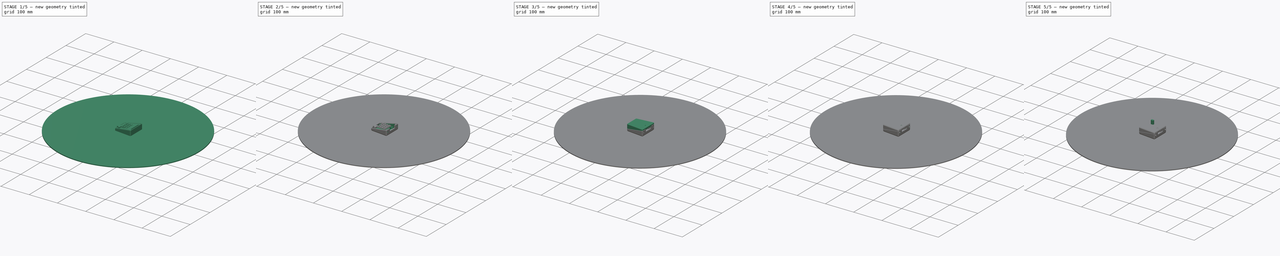
[diagram: build sequence overview — one tinted view per stage of 5, left to right]
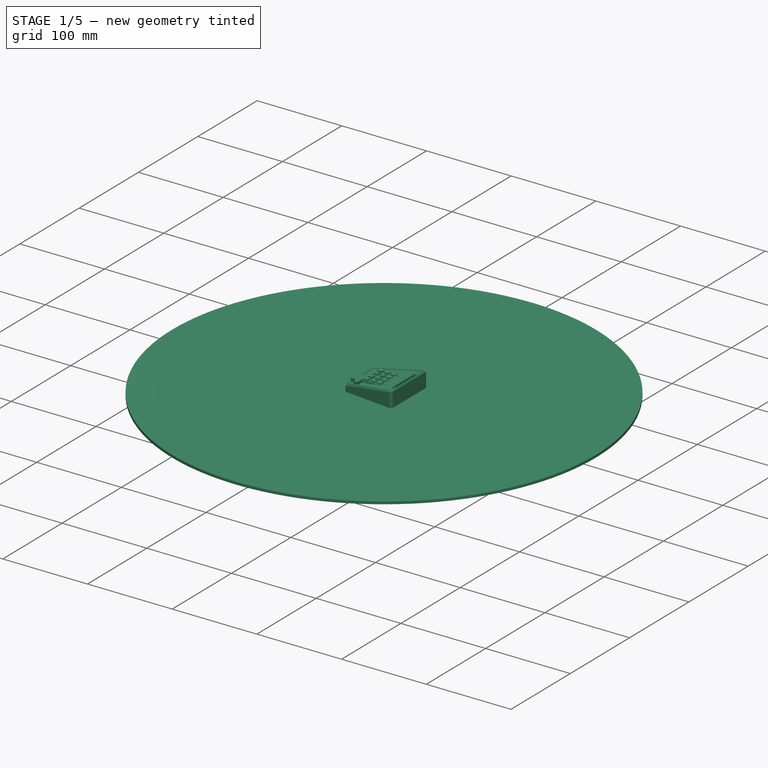
[diagram: stage 1 of 5 — iso view after this stage's code; geometry added in this stage tinted green]
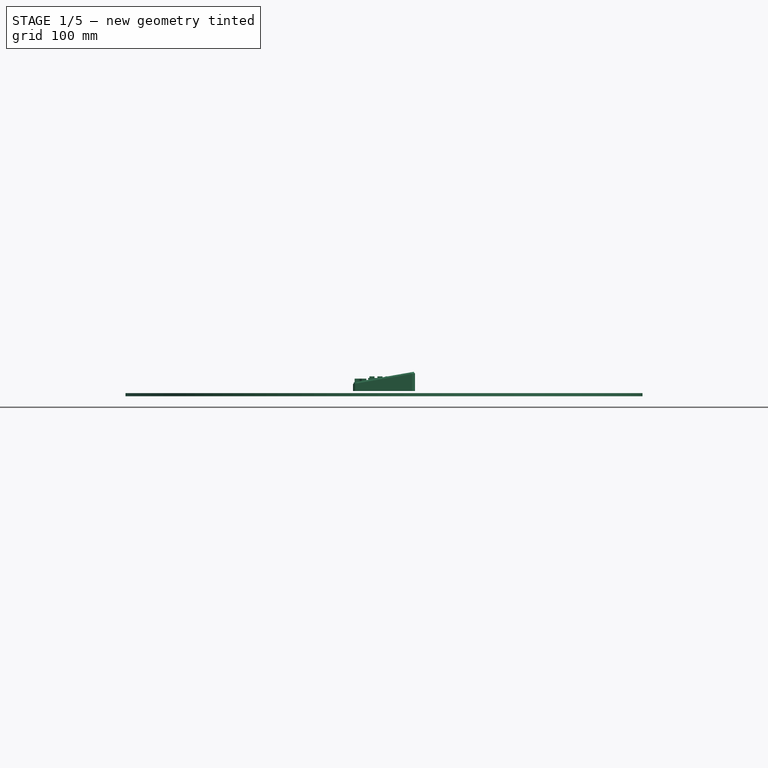
[diagram: stage 1 of 5 — front view after this stage's code; geometry added in this stage tinted green]
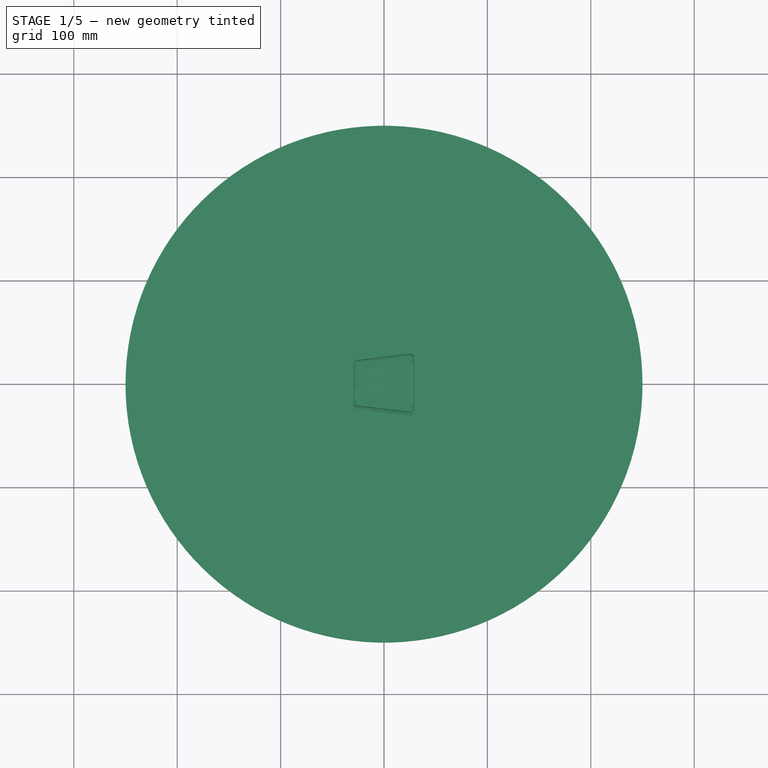
[diagram: stage 1 of 5 — top view after this stage's code; geometry added in this stage tinted green]
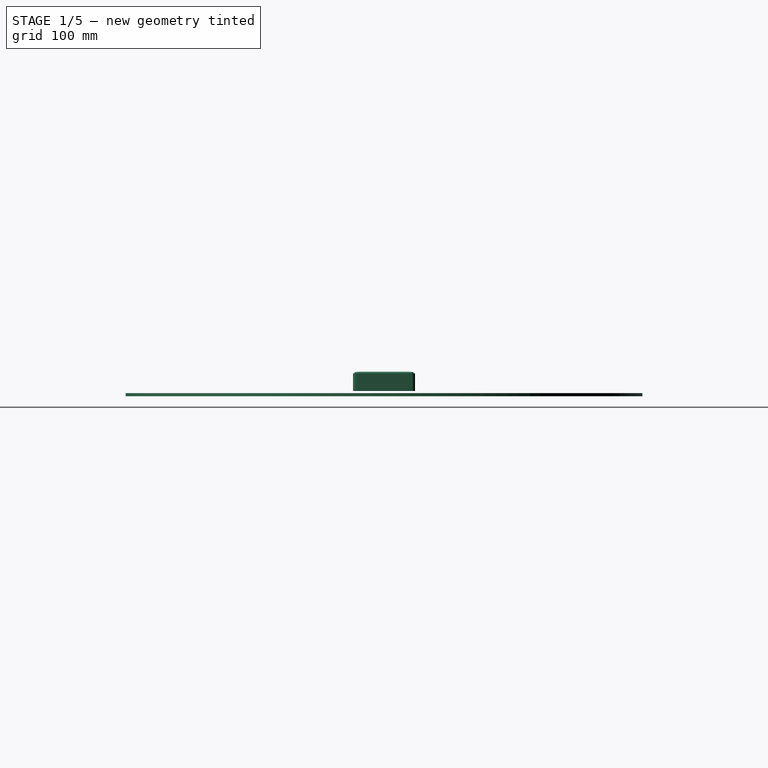
[diagram: stage 1 of 5 — right view after this stage's code; geometry added in this stage tinted green]
FCSTD DOCUMENT  (FreeCAD 0.20R29177 +426 (Git))
Label: NightLight
License: All rights reserved
LicenseURL: http://en.wikipedia.org/wiki/All_rights_reserved
objects: Sketcher::SketchObject×61, PartDesign::Pocket×29, Part::Feature×19, PartDesign::Pad×14, PartDesign::Body×13, PartDesign::Mirrored×10, PartDesign::Revolution×6, PartDesign::PolarPattern×6, Part::FeaturePython×6, PartDesign::Groove×4, PartDesign::SubtractivePipe×3, PartDesign::LinearPattern×2, App::Part×1, PartDesign::AdditivePipe×1, PartDesign::AdditiveLoft×1, PartDesign::MultiTransform×1
note: 234 computed .brp shape members not serialized (recipe doc carries the construction recipe); baked Part::Feature solids carry a one-line shape summary decoded from their .brp

FEATURE [PartDesign::Pad] Pad007  label="B Base shape"
  AllowMultiFace = false
  Direction = (1,1,1)
  Length = 12
  Length2 = 8
  Profile = -> Sketch006
  Type = 4
FEATURE [Sketcher::SketchObject] Sketch019  label="b Separation"
  FullyConstrained = false
  MapMode = 5
  Placement = pos=(0,0,0) rot=(1,0,0;1.5708rad)
  Support = -> [XZ_Plane004]
  sketch-geometry (5):
    g0: LineSegment StartX=31 StartY=13 StartZ=0 EndX=-31 EndY=13 EndZ=0
    g1: LineSegment StartX=-31 StartY=13 StartZ=0 EndX=-31 EndY=-1.46614 EndZ=0
    g2: LineSegment StartX=-31 StartY=-1.46614 StartZ=0 EndX=31 EndY=9.46614 EndZ=0
    g3: LineSegment StartX=31 StartY=9.46614 StartZ=0 EndX=31 EndY=13 EndZ=0
    g4: GeomPoint X=0 Y=4 Z=0
  constraints (13):
    c: Coincident(g0,g1)
    c: Coincident(g1,g2)
    c: Coincident(g2,g3)
    c: Coincident(g3,g0)
    c: Vertical(g1)
    c: Vertical(g3)
    c: Angle(g-1,g2) = 0.174533
    c: Symmetric(g0,g0,g-2)
    c: PointOnObject(g4,g2)
    c: PointOnObject(g4,g-2)
    c: DistanceY(g-1,g4) = 4
    c: DistanceX(g0,g0) = 62
    c: DistanceY(g0) = 13
FEATURE [PartDesign::Pocket] Pocket  label="B Separation"
  AllowMultiFace = false
  BaseFeature = -> Pad007
  Direction = (1,1,1)
  Length = 5
  Length2 = 100
  Midplane = true
  Profile = -> Sketch019
  Type = 1
FEATURE [Sketcher::SketchObject] Sketch022  label="b rim - trj"
  AttachmentOffset = pos=(0,0,4) rot=(0,-1,0;0.174533rad)
  FullyConstrained = false
  MapMode = 5
  Placement = pos=(0,0,4) rot=(0,-1,0;0.174533rad)
  Support = -> [XY_Plane004]
  sketch-geometry (8):
    g0: LineSegment StartX=-26.3439 StartY=21.9802 StartZ=0 EndX=25.6561 EndY=27.9802 EndZ=0
    g1: LineSegment StartX=29 StartY=25 StartZ=0 EndX=29 EndY=-25 EndZ=0
    g2: LineSegment StartX=25.6561 StartY=-27.9802 StartZ=0 EndX=-26.3439 EndY=-21.9802 EndZ=0
    g3: LineSegment StartX=-29 StartY=-19 StartZ=0 EndX=-29 EndY=19 EndZ=0
    g4: ArcOfCircle CenterX=26 CenterY=25 CenterZ=0 NormalX=0 NormalY=0 NormalZ=1 AngleXU=0 Radius=3 StartAngle=2e-16 EndAngle=1.68567
    g5: ArcOfCircle CenterX=-26 CenterY=19 CenterZ=0 NormalX=0 NormalY=0 NormalZ=1 AngleXU=0 Radius=3 StartAngle=1.68567 EndAngle=3.14159
    g6: ArcOfCircle CenterX=-26 CenterY=-19 CenterZ=0 NormalX=0 NormalY=0 NormalZ=1 AngleXU=0 Radius=3 StartAngle=3.14159 EndAngle=4.59751
    g7: ArcOfCircle CenterX=26 CenterY=-25 CenterZ=0 NormalX=0 NormalY=0 NormalZ=1 AngleXU=0 Radius=3 StartAngle=4.59751 EndAngle=6.28319
  constraints (18):
    c: Vertical(g1)
    c: Vertical(g3)
    c: Tangent(g1,g4) = 1.5708
    c: Tangent(g0,g4) = 1.5708
    c: Tangent(g0,g5) = 1.5708
    c: Tangent(g3,g5) = 1.5708
    c: Tangent(g2,g6) = 1.5708
    c: Tangent(g3,g6) = 1.5708
    c: Tangent(g1,g7) = 1.5708
    c: Tangent(g2,g7) = 1.5708
    c: Symmetric(g4,g7,g-1)
    c: Symmetric(g5,g6,g-1)
    c: DistanceY(g6,g5) = 38
    c: DistanceY(g7,g4) = 50
    c: Radius(g4) = 3
    c: Equal(g4,g5)
    c: DistanceX(g6,g-1) = 26
    c: DistanceX(g7) = 26
FEATURE [Sketcher::SketchObject] Sketch023  label="t rim trj"
  AttachmentOffset = pos=(0,0,4) rot=(0,-1,0;0.174533rad)
  FullyConstrained = false
  MapMode = 5
  Placement = pos=(0,0,4) rot=(0,-1,0;0.174533rad)
  Support = -> [XY_Plane006]
  sketch-geometry (8):
    g0: LineSegment StartX=-26.3439 StartY=21.9802 StartZ=0 EndX=25.6561 EndY=27.9802 EndZ=0
    g1: LineSegment StartX=29 StartY=25 StartZ=0 EndX=29 EndY=-25 EndZ=0
    g2: LineSegment StartX=25.6561 StartY=-27.9802 StartZ=0 EndX=-26.3439 EndY=-21.9802 EndZ=0
    g3: LineSegment StartX=-29 StartY=-19 StartZ=0 EndX=-29 EndY=19 EndZ=0
    g4: ArcOfCircle CenterX=26 CenterY=25 CenterZ=0 NormalX=0 NormalY=0 NormalZ=1 AngleXU=0 Radius=3 StartAngle=0 EndAngle=1.68567
    g5: ArcOfCircle CenterX=-26 CenterY=19 CenterZ=0 NormalX=0 NormalY=0 NormalZ=1 AngleXU=0 Radius=3 StartAngle=1.68567 EndAngle=3.14159
    g6: ArcOfCircle CenterX=-26 CenterY=-19 CenterZ=0 NormalX=0 NormalY=0 NormalZ=1 AngleXU=0 Radius=3 StartAngle=3.14159 EndAngle=4.59751
    g7: ArcOfCircle CenterX=26 CenterY=-25 CenterZ=0 NormalX=0 NormalY=0 NormalZ=1 AngleXU=0 Radius=3 StartAngle=4.59751 EndAngle=6.28319
  constraints (18):
    c: Vertical(g1)
    c: Vertical(g3)
    c: Tangent(g1,g4) = 1.5708
    c: Tangent(g0,g4) = 1.5708
    c: Tangent(g0,g5) = 1.5708
    c: Tangent(g3,g5) = 1.5708
    c: Tangent(g2,g6) = 1.5708
    c: Tangent(g3,g6) = 1.5708
    c: Tangent(g1,g7) = 1.5708
    c: Tangent(g2,g7) = 1.5708
    c: Symmetric(g4,g7,g-1)
    c: Symmetric(g5,g6,g-1)
    c: DistanceY(g6,g5) = 38
    c: DistanceY(g7,g4) = 50
    c: Radius(g4) = 3
    c: Equal(g4,g5)
    c: DistanceX(g6,g-1) = 26
    c: DistanceX(g7) = 26
FEATURE [Sketcher::SketchObject] Sketch024  label="b rim - crs"
  FullyConstrained = false
  MapMode = 5
  Placement = pos=(0,0,0) rot=(1,0,0;1.5708rad)
  Support = -> [XZ_Plane004]
  sketch-geometry (7):
    g0: LineSegment StartX=29.491 StartY=9.20006 StartZ=0 EndX=27.6278 EndY=8.87153 EndZ=0
    g1: LineSegment StartX=27.6278 StartY=8.87153 StartZ=0 EndX=27.905 EndY=10.4435 EndZ=0
    g2: LineSegment StartX=27.905 StartY=10.4435 StartZ=0 EndX=28.6929 EndY=10.5825 EndZ=0
    g3: LineSegment StartX=28.6929 StartY=10.5825 StartZ=0 EndX=29.491 EndY=9.20006 EndZ=0
    g4: LineSegment StartX=28.299 StartY=10.513 StartZ=0 EndX=28.5594 EndY=9.0358 EndZ=0
    g5: LineSegment StartX=28.5594 StartY=9.0358 StartZ=0 EndX=0 EndY=4 EndZ=0
    g6: LineSegment StartX=0 StartY=4 StartZ=0 EndX=0 EndY=0 EndZ=0
  constraints (19):
    c: Coincident(g0,g1)
    c: Coincident(g1,g2)
    c: Coincident(g2,g3)
    c: Coincident(g3,g0)
    c: PointOnObject(g4,g2)
    c: PointOnObject(g4,g0)
    c: Coincident(g5,g6)
    c: Coincident(g6,g-1)
    c: Vertical(g6)
    c: DistanceY(g6,g6) = 4
    c: Angle(g-1,g5) = 0.174533
    c: Distance(g5,g4) = 29
    c: Coincident(g4,g5)
    c: Perpendicular(g4,g5)
    c: Symmetric(g0,g0,g4)
    c: Symmetric(g2,g1,g4)
    c: Distance(g4) = 1.5
    c: Distance(g2) = 0.8
    c: Angle(g1,g3) = 0.698132
FEATURE [PartDesign::AdditivePipe] AdditivePipe  label="B Rim"
  AllowMultiFace = false
  AuxilleryCurvelinear = true
  AuxillerySpineTangent = false
  BaseFeature = -> Pocket
  Binormal = (0,0,0)
  Mode = 0
  Profile = -> Sketch024
  Spine = -> Sketch022
  SpineTangent = false
  Transformation = 0
  Transition = 0
FEATURE [Sketcher::SketchObject] Sketch025  label="t rim crs"
  FullyConstrained = false
  MapMode = 5
  Placement = pos=(0,0,0) rot=(1,0,0;1.5708rad)
  Support = -> [XZ_Plane006]
  sketch-geometry (6):
    g0: LineSegment StartX=0 StartY=0 StartZ=0 EndX=0 EndY=4 EndZ=0
    g1: LineSegment StartX=0 StartY=4 StartZ=0 EndX=28.5594 EndY=9.0358 EndZ=0
    g2: LineSegment StartX=28.5594 StartY=9.0358 StartZ=0 EndX=28.0823 EndY=11.7415 EndZ=0
    g3: LineSegment StartX=28.0823 StartY=11.7415 StartZ=0 EndX=27.5746 EndY=8.86215 EndZ=0
    g4: LineSegment StartX=27.5746 StartY=8.86215 StartZ=0 EndX=29.5442 EndY=9.20945 EndZ=0
    g5: LineSegment StartX=29.5442 StartY=9.20945 StartZ=0 EndX=28.0823 EndY=11.7415 EndZ=0
  constraints (16):
    c: Coincident(g-1,g0)
    c: PointOnObject(g0,g-2)
    c: Coincident(g0,g1)
    c: Coincident(g1,g2)
    c: Coincident(g2,g3)
    c: PointOnObject(g3,g1)
    c: Coincident(g3,g4)
    c: Coincident(g4,g5)
    c: Coincident(g5,g3)
    c: DistanceY(g0,g0) = 4
    c: Angle(g-1,g1) = 0.174533
    c: Distance(g1) = 29
    c: Symmetric(g3,g4,g2)
    c: Perpendicular(g1,g2)
    c: Angle(g3,g5) = 0.698132
    c: Distance(g4) = 2
FEATURE [Sketcher::SketchObject] Sketch026  label="t screwhole front"
  AttachmentOffset = pos=(0,0,21) rot=(0,0,1;0rad)
  FullyConstrained = false
  MapMode = 5
  Placement = pos=(0,-21,-4.7e-15) rot=(1,0,0;1.5708rad)
  Support = -> [XZ_Plane006]
  sketch-geometry (5):
    g0: LineSegment StartX=12 StartY=8.8 StartZ=0 EndX=12 EndY=-3.2 EndZ=0
    g1: LineSegment StartX=12 StartY=-3.2 StartZ=0 EndX=12.7 EndY=-3.2 EndZ=0
    g2: LineSegment StartX=12.7 StartY=-3.2 StartZ=0 EndX=12.7 EndY=8.8 EndZ=0
    g3: LineSegment StartX=12.7 StartY=8.8 StartZ=0 EndX=12 EndY=8.8 EndZ=0
    g4: LineSegment StartX=12 StartY=8.8 StartZ=0 EndX=12 EndY=-3.2 EndZ=0
  constraints (15):
    c: DistanceX(g0) = 12
    c: Coincident(g1,g2)
    c: Coincident(g2,g3)
    c: PointOnObject(g3,g0)
    c: Coincident(g3,g4)
    c: Coincident(g4,g1)
    c: Coincident(g0,g1)
    c: Distance(g1) = 0.7
    c: Distance(g2) = 12
    c: Vertical(g0)
    c: DistanceY(g1,g-1) = 3.2
    c: Vertical(g2)
    c: Horizontal(g3)
    c: Horizontal(g1)
    c: Equal(g4,g0)
FEATURE [Sketcher::SketchObject] Sketch027  label="t screwhole rear"
  AttachmentOffset = pos=(0,0,19) rot=(0,0,1;0rad)
  FullyConstrained = false
  MapMode = 5
  Placement = pos=(0,-19,-4.2e-15) rot=(1,0,0;1.5708rad)
  Support = -> [XZ_Plane006]
  sketch-geometry (5):
    g0: LineSegment StartX=-25 StartY=-17.5 StartZ=0 EndX=-25 EndY=-3.5 EndZ=0
    g1: LineSegment StartX=-25 StartY=-3.5 StartZ=0 EndX=-25.7 EndY=-3.5 EndZ=0
    g2: LineSegment StartX=-25.7 StartY=-3.5 StartZ=0 EndX=-25.7 EndY=10.5 EndZ=0
    g3: LineSegment StartX=-25.7 StartY=10.5 StartZ=0 EndX=-25 EndY=10.5 EndZ=0
    g4: LineSegment StartX=-25 StartY=10.5 StartZ=0 EndX=-25 EndY=-3.5 EndZ=0
  constraints (15):
    c: Coincident(g1,g2)
    c: Coincident(g2,g3)
    c: PointOnObject(g3,g0)
    c: Coincident(g3,g4)
    c: Coincident(g4,g1)
    c: Coincident(g0,g1)
    c: Distance(g1) = 0.7
    c: Distance(g2) = 14
    c: DistanceX(g0,g-1) = 25
    c: Vertical(g0)
    c: Vertical(g2)
    c: Horizontal(g1)
    c: Horizontal(g3)
    c: Equal(g0,g4)
    c: DistanceY(g1,g-1) = 3.5
FEATURE [Sketcher::SketchObject] Sketch028  label="b screwhole rear"
  AttachmentOffset = pos=(0,0,19) rot=(0,0,1;0rad)
  FullyConstrained = false
  MapMode = 5
  Placement = pos=(0,-19,-4.2e-15) rot=(1,0,0;1.5708rad)
  Support = -> [XZ_Plane004]
  sketch-geometry (7):
    g0: LineSegment StartX=-25 StartY=18 StartZ=0 EndX=-25 EndY=6 EndZ=0
    g1: LineSegment StartX=-25 StartY=6 StartZ=0 EndX=-23.7 EndY=6 EndZ=0
    g2: LineSegment StartX=-23.7 StartY=6 StartZ=0 EndX=-23.7 EndY=-6 EndZ=0
    g3: LineSegment StartX=-23.7 StartY=-6 StartZ=0 EndX=-22.7 EndY=-7 EndZ=0
    g4: LineSegment StartX=-22.7 StartY=-7 StartZ=0 EndX=-22.7 EndY=-9 EndZ=0
    g5: LineSegment StartX=-22.7 StartY=-9 StartZ=0 EndX=-25 EndY=-9 EndZ=0
    g6: LineSegment StartX=-25 StartY=-9 StartZ=0 EndX=-25 EndY=6 EndZ=0
  constraints (21):
    c: Coincident(g0,g1)
    c: Distance(g1) = 1.3
    c: DistanceX(g0,g-1) = 25
    c: Coincident(g1,g2)
    c: Coincident(g2,g3)
    c: Coincident(g3,g4)
    c: Coincident(g4,g5)
    c: Coincident(g5,g6)
    c: Coincident(g6,g1)
    c: Angle(g3,g2) = 2.35619
    c: Distance(g2) = 12
    c: Distance(g3,g6) = 2.3
    c: Parallel(g4,g6)
    c: Perpendicular(g6,g5)
    c: Distance(g4) = 2
    c: Vertical(g0)
    c: Vertical(g6)
    c: Vertical(g2)
    c: Horizontal(g1)
    c: DistanceY(g2,g-1) = 6
    c: Equal(g2,g0)
FEATURE [Sketcher::SketchObject] Sketch030  label="b cutout screen PCB"
  AttachmentOffset = pos=(0,0,-0.5) rot=(0,0,1;0rad)
  FullyConstrained = false
  MapMode = 5
  Placement = pos=(0,0,-0.5) rot=(0,0,1;0rad)
  Support = -> [XY_Plane004]
  sketch-geometry (4):
    g0: LineSegment StartX=22.4 StartY=19.5 StartZ=0 EndX=28.4 EndY=19.5 EndZ=0
    g1: LineSegment StartX=28.4 StartY=-19.5 StartZ=0 EndX=22.4 EndY=-19.5 EndZ=0
    g2: LineSegment StartX=22.4 StartY=19.5 StartZ=0 EndX=22.4 EndY=-19.5 EndZ=0
    g3: LineSegment StartX=28.4 StartY=19.5 StartZ=0 EndX=28.4 EndY=-19.5 EndZ=0
  constraints (11):
    c: Horizontal(g0)
    c: Horizontal(g1)
    c: Vertical(g2)
    c: Symmetric(g1,g0,g-1)
    c: DistanceY(g1,g0) = 39
    c: Coincident(g1,g2)
    c: Coincident(g0,g2)
    c: DistanceX(g0,g0) = 6
    c: DistanceX(g3) = 28.4
    c: Coincident(g1,g3)
    c: Coincident(g0,g3)
FEATURE [PartDesign::Pocket] Pocket007  label="B cutout screen PCB"
  AllowMultiFace = false
  BaseFeature = -> AdditivePipe
  Direction = (1,1,1)
  Length = 5
  Length2 = 100
  Profile = -> Sketch030
  Reversed = true
  Type = 1
FEATURE [Sketcher::SketchObject] Sketch031  label="b cutout screen glass"
  AttachmentOffset = pos=(0,0,-0.2) rot=(0,0,1;0rad)
  FullyConstrained = false
  MapMode = 5
  Placement = pos=(0,0,-0.2) rot=(0,0,1;0rad)
  Support = -> [XY_Plane004]
  sketch-geometry (4):
    g0: LineSegment StartX=28.4 StartY=15.125 StartZ=0 EndX=23.4 EndY=15.125 EndZ=0
    g1: LineSegment StartX=23.4 StartY=15.125 StartZ=0 EndX=23.4 EndY=-15.125 EndZ=0
    g2: LineSegment StartX=23.4 StartY=-15.125 StartZ=0 EndX=28.4 EndY=-15.125 EndZ=0
    g3: LineSegment StartX=28.4 StartY=-15.125 StartZ=0 EndX=28.4 EndY=15.125 EndZ=0
  constraints (11):
    c: Coincident(g0,g1)
    c: Coincident(g1,g2)
    c: Coincident(g2,g3)
    c: Coincident(g3,g0)
    c: Horizontal(g0)
    c: Horizontal(g2)
    c: Vertical(g1)
    c: Symmetric(g2,g0,g-1)
    c: DistanceY(g3,g3) = 30.25
    c: DistanceX(g0,g0) = 5
    c: DistanceX(g0) = 28.4
FEATURE [PartDesign::Pocket] Pocket008  label="B cutout screen glass"
  AllowMultiFace = false
  BaseFeature = -> Pocket007
  Direction = (1,1,1)
  Length = 5
  Length2 = 100
  Profile = -> Sketch031
  Reversed = true
  Type = 1
FEATURE [Sketcher::SketchObject] Sketch032  label="b cutout flex"
  AttachmentOffset = pos=(0,0,1) rot=(0,0,1;0rad)
  FullyConstrained = false
  MapMode = 5
  Placement = pos=(0,0,1) rot=(0,0,1;0rad)
  Support = -> [XY_Plane004]
  sketch-geometry (4):
    g0: LineSegment StartX=27 StartY=-19.15 StartZ=0 EndX=25 EndY=-19.15 EndZ=0
    g1: LineSegment StartX=25 StartY=-19.15 StartZ=0 EndX=25 EndY=0 EndZ=0
    g2: LineSegment StartX=25 StartY=0 StartZ=0 EndX=27 EndY=0 EndZ=0
    g3: LineSegment StartX=27 StartY=0 StartZ=0 EndX=27 EndY=-19.15 EndZ=0
  constraints (12):
    c: Coincident(g0,g1)
    c: Coincident(g1,g2)
    c: Coincident(g2,g3)
    c: Coincident(g3,g0)
    c: Horizontal(g0)
    c: Horizontal(g2)
    c: Vertical(g1)
    c: Vertical(g3)
    c: DistanceY(g0,g-1) = 19.15
    c: DistanceX(g0) = 27
    c: DistanceX(g0,g0) = 2
    c: PointOnObject(g2,g-1)
FEATURE [PartDesign::Pocket] Pocket009  label="B cutout flex"
  AllowMultiFace = false
  BaseFeature = -> Pocket008
  Direction = (1,1,1)
  Length = 5
  Length2 = 100
  Profile = -> Sketch032
  Reversed = true
  Type = 1
FEATURE [PartDesign::Body] Body003  label="Bottom"
  Group = -> [Sketch006,Pad007,Sketch019,Pocket,Sketch022,Sketch024,AdditivePipe,Sketch028,Sketch030,Pocket007,Sketch031,Pocket008,Sketch032,Pocket009,Sketch034,SubtractivePipe001,Sketch038,Pocket013,Sketch041,Pocket015,Sketch043,Pocket016,Mirrored003,Sketch044,Pad010,Sketch045,Pocket017,Mirrored004,Sketch049,Pad012,Mirrored005,Sketch051,Sketch052,Sketch053,Sketch055,Sketch056,Sketch061,Groove002,Groove003,+15 more]
  Origin = -> Origin004
  Tip = -> Pad019
FEATURE [Sketcher::SketchObject] Sketch066  label="l baseshape"
  FullyConstrained = false
  MapMode = 5
  Support = -> [XY_Plane008]
  sketch-geometry (7):
    g0: LineSegment StartX=-28.4 StartY=-5 StartZ=0 EndX=-17 EndY=-5 EndZ=0
    g1: LineSegment StartX=-17 StartY=-5 StartZ=0 EndX=-17 EndY=-20.9377 EndZ=0
    g2: LineSegment StartX=-17 StartY=-20.9377 StartZ=0 EndX=-21.6332 EndY=-20.4507 EndZ=0
    g3: LineSegment StartX=-28.4 StartY=-15.5 StartZ=0 EndX=-28.4 EndY=-5 EndZ=0
    g4: ArcOfCircle CenterX=-25 CenterY=-19 CenterZ=0 NormalX=0 NormalY=0 NormalZ=1 AngleXU=0 Radius=3.5 StartAngle=6.17847 EndAngle=7.85398
    g5: LineSegment StartX=-25 StartY=-15.5 StartZ=0 EndX=-28.4 EndY=-15.5 EndZ=0
    g6: LineSegment StartX=-21.5192 StartY=-19.3658 StartZ=0 EndX=-21.6332 EndY=-20.4507 EndZ=0
  constraints (20):
    c: Coincident(g0,g1)
    c: Coincident(g1,g2)
    c: Coincident(g3,g0)
    c: Horizontal(g0)
    c: Vertical(g1)
    c: Vertical(g3)
    c: DistanceX(g0,g-1) = 17
    c: DistanceY(g0,g-1) = 5
    c: Angle(g2,g-1) = 0.10472
    c: DistanceY(g4,g-1) = 19
    c: DistanceX(g4,g-1) = 25
    c: Radius(g4) = 3.5
    c: Horizontal(g5)
    c: Tangent(g4,g5) = -1.5708
    c: Tangent(g4,g6) = 1.5708
    c: Coincident(g2,g6)
    c: Coincident(g3,g5)
    c: Distance(g-1,g2) = 22.6
    c: Perpendicular(g2,g6)
    c: DistanceX(g0,g-1) = 28.4
FEATURE [PartDesign::Pad] Pad020  label="L Baseshape"
  AllowMultiFace = false
  Direction = (1,1,1)
  Length = 4
  Length2 = 100
  Profile = -> Sketch066
  Type = 0
FEATURE [Sketcher::SketchObject] Sketch067  label="l pocket components"
  AttachmentOffset = pos=(0,0,1.5) rot=(0,0,1;0rad)
  ExternalGeometry = -> [Pad020]
  FullyConstrained = false
  MapMode = 5
  Placement = pos=(0,0,1.5) rot=(0,0,1;0rad)
  Support = -> [XY_Plane008]
  sketch-geometry (10):
    g0: LineSegment StartX=-20.6 StartY=-6 StartZ=0 EndX=-18 EndY=-6 EndZ=0
    g1: LineSegment StartX=-18 StartY=-6 StartZ=0 EndX=-18 EndY=-14.5 EndZ=0
    g2: LineSegment StartX=-18 StartY=-14.5 StartZ=0 EndX=-27.4 EndY=-14.5 EndZ=0
    g3: LineSegment StartX=-27.4 StartY=-14.5 StartZ=0 EndX=-27.4 EndY=-6 EndZ=0
    g4: LineSegment StartX=-24.2 StartY=-4 StartZ=0 EndX=-20.6 EndY=-4 EndZ=0
    g5: LineSegment StartX=-20.6 StartY=-4 StartZ=0 EndX=-20.6 EndY=-6 EndZ=0
    g6: LineSegment StartX=-24.2 StartY=-6 StartZ=0 EndX=-24.2 EndY=-4 EndZ=0
    g7: LineSegment StartX=-27.4 StartY=-6 StartZ=0 EndX=-24.2 EndY=-6 EndZ=0
    g8: Circle CenterX=-28.4 CenterY=-15.5 CenterZ=0 NormalX=0 NormalY=0 NormalZ=1 AngleXU=0 Radius=1
    g9: Circle CenterX=-17 CenterY=-5 CenterZ=0 NormalX=0 NormalY=0 NormalZ=1 AngleXU=0 Radius=1
  constraints (28):
    c: Coincident(g0,g1)
    c: Coincident(g1,g2)
    c: Coincident(g2,g3)
    c: Horizontal(g0)
    c: Horizontal(g2)
    c: Vertical(g1)
    c: Vertical(g3)
    c: Coincident(g4,g5)
    c: Coincident(g6,g4)
    c: Horizontal(g4)
    c: Vertical(g5)
    c: Vertical(g6)
    c: Coincident(g5,g0)
    c: DistanceX(g6,g0) = 3.6
    c: DistanceY(g6,g6) = 2
    c: Coincident(g7,g3)
    c: Coincident(g7,g6)
    c: Horizontal(g7)
    c: PointOnObject(g0,g7)
    c: DistanceX(g7,g7) = 3.2
    c: Coincident(g8,g-3)
    c: Tangent(g3,g8)
    c: Tangent(g8,g2)
    c: Coincident(g9,g-4)
    c: Tangent(g9,g0)
    c: Tangent(g9,g1)
    c: Radius(g9) = 1
    c: Equal(g8,g9)
FEATURE [PartDesign::Pocket] Pocket041  label="L pocket components"
  AllowMultiFace = false
  BaseFeature = -> Pad020
  Direction = (1,1,1)
  Length = 5
  Length2 = 100
  Profile = -> Sketch067
  Type = 1
FEATURE [PartDesign::Body] Body012  label="LightCover"
  Group = -> [Sketch066,Pad020,Sketch067,Pocket041]
  Origin = -> Origin008
  Placement = pos=(0,0,-4) rot=(0,0,1;0rad)
  Tip = -> Pocket041
FEATURE [Part::FeaturePython] b_WS2812B_4x4_001_  label="WS2812B 4x4_001"  # a2plus imported part (geometry in sourceFile) (typed FeaturePython)
  Placement = pos=(0,0,3) rot=(0,0,1;0rad)
  a2p_Version = V0.1
  fixedPosition = true
  objectType = a2pPart
  sourceFile = .\WS2812B 4x4.FCStd
  subassemblyImport = false
  timeLastImport = 1.61813e+09
  updateColors = true
FEATURE [Sketcher::SketchObject] Sketch073
  AttachmentOffset = pos=(0,0,-10) rot=(0,0,1;0rad)
  FullyConstrained = true
  MapMode = 5
  Placement = pos=(0,0,-10) rot=(0,0,1;0rad)
  Support = -> [XY_Plane009]
  sketch-geometry (1):
    g0: Circle CenterX=0 CenterY=0 CenterZ=0 NormalX=0 NormalY=0 NormalZ=1 AngleXU=0 Radius=250
  constraints (2):
    c: Coincident(g0,g-1)
    c: Diameter(g0) = 500
FEATURE [PartDesign::Pad] Pad021
  Direction = (0,0,1)
  Length = 3
  Length2 = 10
  Profile = -> Sketch073
  ReferenceAxis = -> Sketch073 [N_Axis]
  Reversed = true
  Type = 0
FEATURE [PartDesign::Body] Body013  label="Table for rendering"
  Group = -> [Sketch073,Pad021]
  Origin = -> Origin009
  Tip = -> Pad021
FEATURE [Sketcher::SketchObject] Sketch074
  FullyConstrained = true
  MapMode = 5
  Placement = pos=(0,0,0) rot=(1,0,0;1.5708rad)
  Support = -> [XZ_Plane010]
  sketch-geometry (5):
    g0: LineSegment StartX=0 StartY=0 StartZ=0 EndX=0 EndY=-6 EndZ=0
    g1: LineSegment StartX=0 StartY=-6 StartZ=0 EndX=0.9 EndY=-1.05 EndZ=0
    g2: LineSegment StartX=0.9 StartY=-1.05 StartZ=0 EndX=1.85 EndY=-0.1 EndZ=0
    g3: LineSegment StartX=1.85 StartY=0 StartZ=0 EndX=0 EndY=0 EndZ=0
    g4: LineSegment StartX=1.85 StartY=-0.1 StartZ=0 EndX=1.85 EndY=0 EndZ=0
  constraints (14):
    c: Coincident(g-1,g0)
    c: Vertical(g0)
    c: Coincident(g0,g1)
    c: Coincident(g1,g2)
    c: Coincident(g3,g0)
    c: DistanceY(g0,g0) = 6
    c: Angle(g3,g2) = 0.785398
    c: DistanceX(g0,g1) = 0.9
    c: Horizontal(g3)
    c: Coincident(g4,g2)
    c: Vertical(g4)
    c: Coincident(g3,g4)
    c: DistanceX(g3) = 1.85
    c: DistanceY(g4,g4) = 0.1
FEATURE [PartDesign::Revolution] Revolution
  AllowMultiFace = false
  Angle = 360
  Axis = (-3e-16,3e-16,1)
  Base = (0,0,0)
  Placement = pos=(0,0,0) rot=(1,0,0;1.5708rad)
  Profile = -> Sketch074
  ReferenceAxis = -> Z_Axis010
  Reversed = true
FEATURE [Sketcher::SketchObject] Sketch001
  FullyConstrained = false
  MapMode = 5
  Placement = pos=(0,0,0) rot=(1,0,0;1.5708rad)
  Support = -> [XZ_Plane010]
  sketch-geometry (3):
    g0: LineSegment StartX=-1.15 StartY=0 StartZ=0 EndX=0 EndY=-1.15 EndZ=0
    g1: LineSegment StartX=0 StartY=-1.15 StartZ=0 EndX=1.15 EndY=0 EndZ=0
    g2: LineSegment StartX=1.15 StartY=0 StartZ=0 EndX=-1.15 EndY=0 EndZ=0
  constraints (9):
    c: PointOnObject(g0,g-1)
    c: Coincident(g0,g1)
    c: PointOnObject(g1,g-1)
    c: Coincident(g1,g2)
    c: Coincident(g2,g0)
    c: PointOnObject(g0,g-2)
    c: Equal(g1,g0)
    c: Perpendicular(g0,g1)
    c: DistanceX(g2,g2) = 2.3
FEATURE [PartDesign::Pocket] Pocket042  label="Pocket"
  AllowMultiFace = false
  BaseFeature = -> Revolution
  Direction = (0,1,2e-16)
  Length = 0.4
  Length2 = 100
  Midplane = true
  Placement = pos=(0,0,0) rot=(1,0,0;1.5708rad)
  Profile = -> Sketch001
  Type = 0
FEATURE [PartDesign::PolarPattern] PolarPattern
  Angle = 90
  Axis = -> Z_Axis010
  BaseFeature = -> Pocket042
  Occurrences = 2
  Originals = -> [Pocket042]
  Placement = pos=(0,0,0) rot=(1,0,0;1.5708rad)
FEATURE [PartDesign::Body] Body014  label="Selftapping screw M2.3x6 -1"
  Group = -> [Sketch074,Revolution,Sketch001,Pocket042,PolarPattern]
  Origin = -> Origin010
  Placement = pos=(7.8,-7.8,6) rot=(0,0,1;0rad)
  Tip = -> PolarPattern
FEATURE [Sketcher::SketchObject] Sketch075
  FullyConstrained = true
  MapMode = 5
  Placement = pos=(0,0,0) rot=(1,0,0;1.5708rad)
  Support = -> [XZ_Plane011]
  sketch-geometry (5):
    g0: LineSegment StartX=0 StartY=0 StartZ=0 EndX=0 EndY=-6 EndZ=0
    g1: LineSegment StartX=0 StartY=-6 StartZ=0 EndX=0.9 EndY=-1.05 EndZ=0
    g2: LineSegment StartX=0.9 StartY=-1.05 StartZ=0 EndX=1.85 EndY=-0.1 EndZ=0
    g3: LineSegment StartX=1.85 StartY=0 StartZ=0 EndX=0 EndY=0 EndZ=0
    g4: LineSegment StartX=1.85 StartY=-0.1 StartZ=0 EndX=1.85 EndY=0 EndZ=0
  constraints (14):
    c: Coincident(g-1,g0)
    c: Vertical(g0)
    c: Coincident(g0,g1)
    c: Coincident(g1,g2)
    c: Coincident(g3,g0)
    c: DistanceY(g0,g0) = 6
    c: Angle(g3,g2) = 0.785398
    c: DistanceX(g0,g1) = 0.9
    c: Horizontal(g3)
    c: Coincident(g4,g2)
    c: Vertical(g4)
    c: Coincident(g3,g4)
    c: DistanceX(g3) = 1.85
    c: DistanceY(g4,g4) = 0.1
FEATURE [PartDesign::Revolution] Revolution006
  AllowMultiFace = false
  Angle = 360
  Axis = (-3e-16,3e-16,1)
  Base = (0,0,0)
  Placement = pos=(0,0,0) rot=(1,0,0;1.5708rad)
  Profile = -> Sketch075
  ReferenceAxis = -> Z_Axis011
  Reversed = true
FEATURE [Sketcher::SketchObject] Sketch076
  FullyConstrained = false
  MapMode = 5
  Placement = pos=(0,0,0) rot=(1,0,0;1.5708rad)
  Support = -> [XZ_Plane011]
  sketch-geometry (3):
    g0: LineSegment StartX=-1.15 StartY=0 StartZ=0 EndX=0 EndY=-1.15 EndZ=0
    g1: LineSegment StartX=0 StartY=-1.15 StartZ=0 EndX=1.15 EndY=0 EndZ=0
    g2: LineSegment StartX=1.15 StartY=0 StartZ=0 EndX=-1.15 EndY=0 EndZ=0
  constraints (9):
    c: PointOnObject(g0,g-1)
    c: Coincident(g0,g1)
    c: PointOnObject(g1,g-1)
    c: Coincident(g1,g2)
    c: Coincident(g2,g0)
    c: PointOnObject(g0,g-2)
    c: Equal(g1,g0)
    c: Perpendicular(g0,g1)
    c: DistanceX(g2,g2) = 2.3
FEATURE [PartDesign::Pocket] Pocket043
  AllowMultiFace = false
  BaseFeature = -> Revolution006
  Direction = (0,1,2e-16)
  Length = 0.4
  Length2 = 100
  Midplane = true
  Placement = pos=(0,0,0) rot=(1,0,0;1.5708rad)
  Profile = -> Sketch076
  Type = 0
FEATURE [PartDesign::PolarPattern] PolarPattern006
  Angle = 90
  Axis = -> Z_Axis011
  BaseFeature = -> Pocket043
  Occurrences = 2
  Originals = -> [Pocket043]
  Placement = pos=(0,0,0) rot=(1,0,0;1.5708rad)
FEATURE [PartDesign::Body] Body015  label="Selftapping screw M2.3x6 -2"
  Group = -> [Sketch075,Revolution006,Sketch076,Pocket043,PolarPattern006]
  Origin = -> Origin011
  Placement = pos=(-7.8,7.8,6) rot=(0,0,1;0rad)
  Tip = -> PolarPattern006
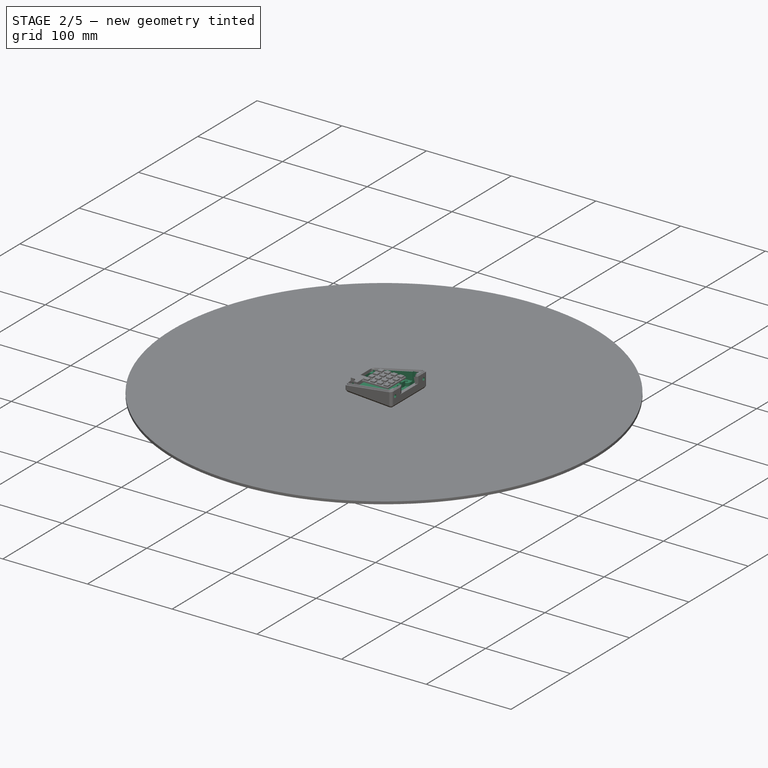
[diagram: stage 2 of 5 — iso view after this stage's code; geometry added in this stage tinted green]
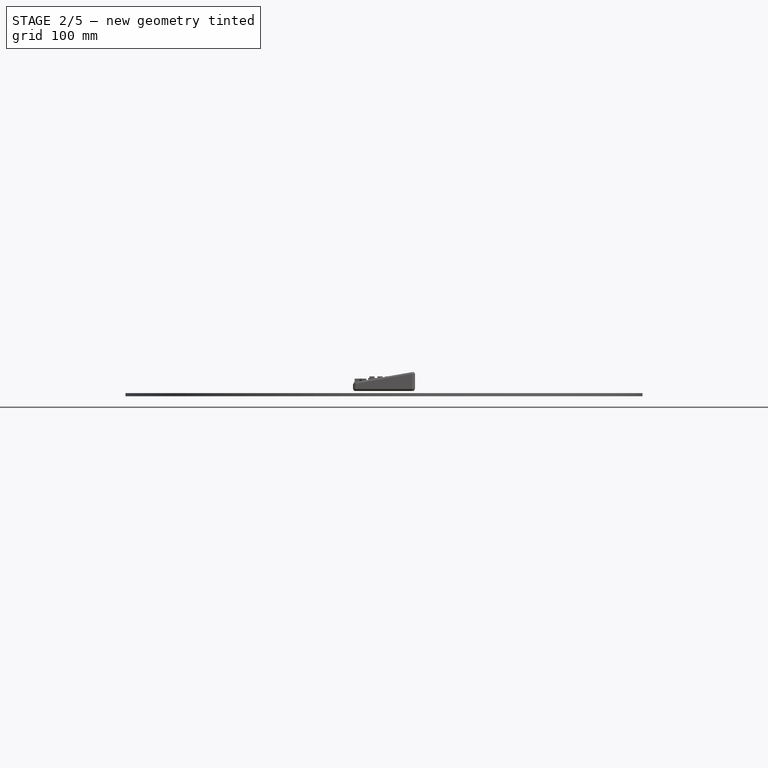
[diagram: stage 2 of 5 — front view after this stage's code; geometry added in this stage tinted green]
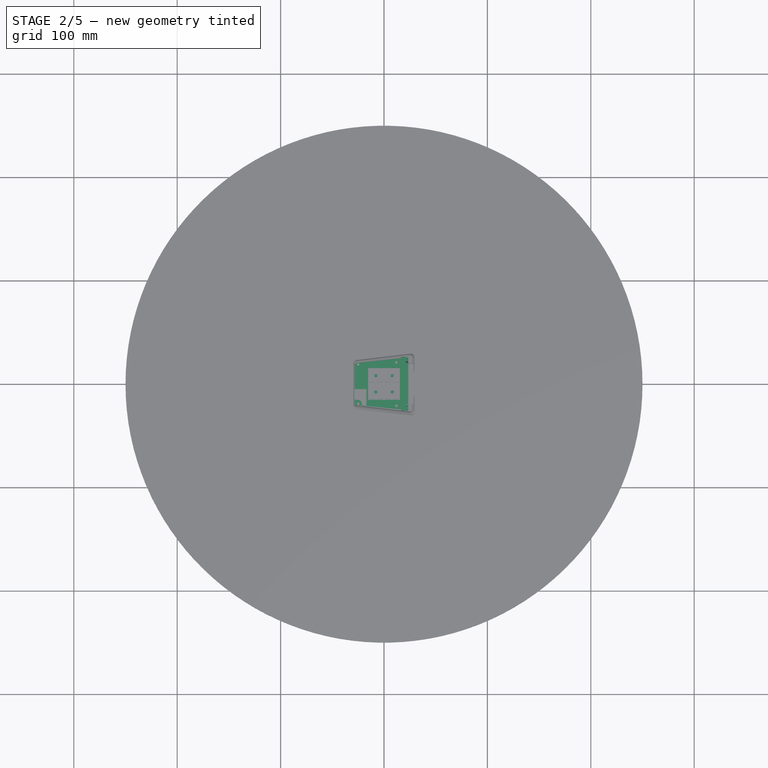
[diagram: stage 2 of 5 — top view after this stage's code; geometry added in this stage tinted green]
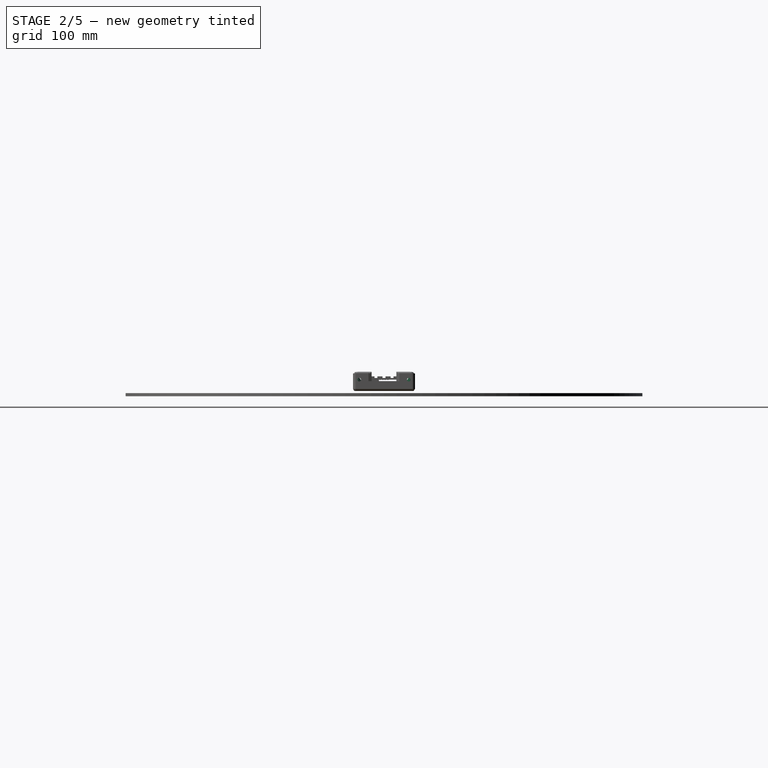
[diagram: stage 2 of 5 — right view after this stage's code; geometry added in this stage tinted green]
FEATURE [Sketcher::SketchObject] Sketch034  label="b chamfer"
  FullyConstrained = false
  MapMode = 5
  Placement = pos=(0,0,0) rot=(1,0,0;1.5708rad)
  Support = -> [XZ_Plane004]
  sketch-geometry (3):
    g0: LineSegment StartX=28.5996 StartY=-8 StartZ=0 EndX=30 EndY=-8 EndZ=0
    g1: LineSegment StartX=30 StartY=-8 StartZ=0 EndX=30 EndY=-6 EndZ=0
    g2: LineSegment StartX=30 StartY=-6 StartZ=0 EndX=28.5996 EndY=-8 EndZ=0
  constraints (9):
    c: Horizontal(g0)
    c: Coincident(g0,g1)
    c: Vertical(g1)
    c: Coincident(g1,g2)
    c: Coincident(g2,g0)
    c: DistanceX(g0) = 30
    c: DistanceY(g0,g-1) = 8
    c: Angle(g0,g2) = 0.959931
    c: DistanceY(g1,g1) = 2
FEATURE [PartDesign::SubtractivePipe] SubtractivePipe001  label="B chamfer"
  AllowMultiFace = false
  AuxilleryCurvelinear = true
  AuxillerySpineTangent = false
  BaseFeature = -> Pocket009
  Binormal = (0,0,0)
  Mode = 0
  Profile = -> Sketch034
  Spine = -> Sketch006
  SpineTangent = false
  Transformation = 0
  Transition = 0
FEATURE [Sketcher::SketchObject] Sketch035  label="t chamfer"
  FullyConstrained = false
  MapMode = 5
  Placement = pos=(0,0,0) rot=(1,0,0;1.5708rad)
  Support = -> [XZ_Plane006]
  sketch-geometry (3):
    g0: LineSegment StartX=28.5996 StartY=14 StartZ=0 EndX=30 EndY=14 EndZ=0
    g1: LineSegment StartX=30 StartY=14 StartZ=0 EndX=30 EndY=12 EndZ=0
    g2: LineSegment StartX=30 StartY=12 StartZ=0 EndX=28.5996 EndY=14 EndZ=0
  constraints (9):
    c: Horizontal(g0)
    c: Coincident(g0,g1)
    c: Vertical(g1)
    c: Coincident(g1,g2)
    c: Coincident(g2,g0)
    c: DistanceX(g0) = 30
    c: DistanceY(g0) = 14
    c: Angle(g2,g0) = 0.959931
    c: DistanceY(g1,g1) = 2
FEATURE [Sketcher::SketchObject] Sketch036  label="t pocket screen"
  AttachmentOffset = pos=(0,0,12) rot=(0,0,1;0rad)
  FullyConstrained = false
  MapMode = 5
  Placement = pos=(0,0,12) rot=(0,0,1;0rad)
  Support = -> [XY_Plane006]
  sketch-geometry (4):
    g0: LineSegment StartX=29 StartY=20 StartZ=0 EndX=23 EndY=20 EndZ=0
    g1: LineSegment StartX=23 StartY=20 StartZ=0 EndX=23 EndY=-20 EndZ=0
    g2: LineSegment StartX=23 StartY=-20 StartZ=0 EndX=29 EndY=-20 EndZ=0
    g3: LineSegment StartX=29 StartY=-20 StartZ=0 EndX=29 EndY=20 EndZ=0
  constraints (11):
    c: Coincident(g0,g1)
    c: Coincident(g1,g2)
    c: Coincident(g2,g3)
    c: Coincident(g3,g0)
    c: Horizontal(g0)
    c: Horizontal(g2)
    c: Vertical(g1)
    c: Symmetric(g2,g0,g-1)
    c: DistanceY(g3,g3) = 40
    c: DistanceX(g0) = 29
    c: DistanceX(g0,g0) = 6
FEATURE [Sketcher::SketchObject] Sketch037  label="t screw hole top"
  FullyConstrained = false
  MapMode = 5
  Support = -> [XY_Plane006]
  sketch-geometry (1):
    g0: Circle CenterX=19 CenterY=0 CenterZ=0 NormalX=0 NormalY=0 NormalZ=1 AngleXU=0 Radius=1.65
  constraints (3):
    c: PointOnObject(g0,g-1)
    c: DistanceX(g0) = 19
    c: Radius(g0) = 1.65
FEATURE [Sketcher::SketchObject] Sketch038  label="b cutout display"
  AttachmentOffset = pos=(0,0,1.6) rot=(0,0,1;0rad)
  FullyConstrained = false
  MapMode = 5
  Placement = pos=(0,0,1.6) rot=(0,0,1;0rad)
  Support = -> [XY_Plane004]
  sketch-geometry (6):
    g0: LineSegment StartX=27.9 StartY=12 StartZ=0 EndX=28.9 EndY=12 EndZ=0
    g1: LineSegment StartX=28.9 StartY=-12 StartZ=0 EndX=27.9 EndY=-12 EndZ=0
    g2: LineSegment StartX=27.9 StartY=-12 StartZ=0 EndX=27.9 EndY=12 EndZ=0
    g3: LineSegment StartX=28.9 StartY=12 StartZ=0 EndX=32 EndY=20.5172 EndZ=0
    g4: LineSegment StartX=32 StartY=20.5172 StartZ=0 EndX=32 EndY=-20.5172 EndZ=0
    g5: LineSegment StartX=32 StartY=-20.5172 StartZ=0 EndX=28.9 EndY=-12 EndZ=0
  constraints (15):
    c: Coincident(g1,g2)
    c: Coincident(g2,g0)
    c: Horizontal(g0)
    c: Symmetric(g0,g1,g-1)
    c: DistanceY(g2,g2) = 24
    c: Coincident(g3,g4)
    c: Coincident(g4,g5)
    c: DistanceX(g4) = 32
    c: Symmetric(g4,g3,g-1)
    c: Coincident(g3,g0)
    c: Coincident(g1,g5)
    c: Symmetric(g1,g0,g-1)
    c: Angle(g4,g5) = 0.349066
    c: DistanceX(g1) = 28.9
    c: DistanceX(g1,g1) = 1
FEATURE [PartDesign::Pocket] Pocket013  label="B Cutout display"
  AllowMultiFace = false
  BaseFeature = -> SubtractivePipe001
  Direction = (1,1,1)
  Length = 5
  Length2 = 100
  Profile = -> Sketch038
  Reversed = true
  Type = 1
FEATURE [Sketcher::SketchObject] Sketch039  label="t protrusion display"
  AttachmentOffset = pos=(0,0,8.6) rot=(0,0,1;0rad)
  FullyConstrained = false
  MapMode = 5
  Placement = pos=(0,0,8.6) rot=(0,0,1;0rad)
  Support = -> [XY_Plane006]
  sketch-geometry (4):
    g0: LineSegment StartX=28.9 StartY=-11.85 StartZ=0 EndX=28.9 EndY=11.85 EndZ=0
    g1: LineSegment StartX=28.9 StartY=11.85 StartZ=0 EndX=30 EndY=14.8722 EndZ=0
    g2: LineSegment StartX=30 StartY=14.8722 StartZ=0 EndX=30 EndY=-14.8722 EndZ=0
    g3: LineSegment StartX=30 StartY=-14.8722 StartZ=0 EndX=28.9 EndY=-11.85 EndZ=0
  constraints (10):
    c: DistanceY(g0,g0) = 23.7
    c: Coincident(g1,g2)
    c: Coincident(g2,g3)
    c: Symmetric(g2,g1,g-1)
    c: Symmetric(g3,g1,g-1)
    c: Angle(g2,g3) = 0.349066
    c: DistanceX(g2) = 30
    c: Coincident(g1,g0)
    c: Coincident(g3,g0)
    c: DistanceX(g3,g3) = 1.1
FEATURE [Sketcher::SketchObject] Sketch040  label="t Large pocket"
  AttachmentOffset = pos=(0,0,13) rot=(0,0,1;0rad)
  FullyConstrained = false
  MapMode = 5
  Placement = pos=(0,0,13) rot=(0,0,1;0rad)
  Support = -> [XY_Plane006]
  sketch-geometry (12):
    g0: LineSegment StartX=-25.2091 StartY=20.276 StartZ=0 EndX=23.7909 EndY=25.4261 EndZ=0
    g1: LineSegment StartX=26 StartY=23.4371 StartZ=0 EndX=26 EndY=6.8045 EndZ=0
    g2: LineSegment StartX=-27 StartY=-18.287 StartZ=0 EndX=-27 EndY=18.287 EndZ=0
    g3: ArcOfCircle CenterX=19 CenterY=0 CenterZ=0 NormalX=0 NormalY=0 NormalZ=1 AngleXU=0 Radius=4 StartAngle=1.91986 EndAngle=4.36332
    g4: LineSegment StartX=26 StartY=6.8045 StartZ=0 EndX=17.6319 EndY=3.75877 EndZ=0
    g5: LineSegment StartX=26 StartY=-6.8045 StartZ=0 EndX=17.6319 EndY=-3.75877 EndZ=0
    g6: LineSegment StartX=26 StartY=-6.8045 StartZ=0 EndX=26 EndY=-23.4371 EndZ=0
    g7: ArcOfCircle CenterX=24 CenterY=23.4371 CenterZ=0 NormalX=0 NormalY=0 NormalZ=1 AngleXU=0 Radius=2 StartAngle=8e-16 EndAngle=1.67552
    g8: ArcOfCircle CenterX=24 CenterY=-23.4371 CenterZ=0 NormalX=0 NormalY=0 NormalZ=1 AngleXU=0 Radius=2 StartAngle=4.60767 EndAngle=6.28319
    g9: LineSegment StartX=23.7909 StartY=-25.4261 StartZ=0 EndX=-25.2091 EndY=-20.276 EndZ=0
    g10: ArcOfCircle CenterX=-25 CenterY=18.287 CenterZ=0 NormalX=0 NormalY=0 NormalZ=1 AngleXU=0 Radius=2 StartAngle=1.67552 EndAngle=3.14159
    g11: ArcOfCircle CenterX=-25 CenterY=-18.287 CenterZ=0 NormalX=0 NormalY=0 NormalZ=1 AngleXU=0 Radius=2 StartAngle=3.14159 EndAngle=4.60767
  constraints (27):
    c: Vertical(g2)
    c: PointOnObject(g3,g-1)
    c: DistanceX(g3) = 19
    c: Tangent(g3,g5) = 1.5708
    c: Tangent(g3,g4) = -1.5708
    c: Coincident(g1,g4)
    c: Tangent(g1,g6)
    c: Coincident(g5,g6)
    c: Symmetric(g5,g1,g-1)
    c: Angle(g5,g4) = 0.698132
    c: Radius(g3) = 4
    c: Tangent(g1,g7) = 1.5708
    c: Tangent(g6,g8) = 1.5708
    c: Symmetric(g7,g8,g-1)
    c: Radius(g7) = 2
    c: DistanceX(g1) = 26
    c: Tangent(g9,g8) = 1.5708
    c: Tangent(g0,g7) = 1.5708
    c: Tangent(g0,g10) = 1.5708
    c: Tangent(g2,g10) = 1.5708
    c: Tangent(g9,g11) = 1.5708
    c: Tangent(g2,g11) = 1.5708
    c: DistanceX(g2,g-1) = 27
    c: Distance(g-1,g0) = 22.8
    c: Angle(g0) = 0.10472
    c: Radius(g10) = 2
    c: Symmetric(g11,g10,g-1)
FEATURE [Sketcher::SketchObject] Sketch041  label="b ESP pocket"
  AttachmentOffset = pos=(0,0,-6.5) rot=(0,0,1;0rad)
  FullyConstrained = false
  MapMode = 5
  Placement = pos=(0,0,-6.5) rot=(0,0,1;0rad)
  Support = -> [XY_Plane004]
  sketch-geometry (20):
    g0: LineSegment StartX=-28.5 StartY=16 StartZ=0 EndX=-28.5 EndY=-16 EndZ=0
    g1: LineSegment StartX=-28.5 StartY=-16 StartZ=0 EndX=-25 EndY=-16 EndZ=0
    g2: LineSegment StartX=23.5 StartY=-20 StartZ=0 EndX=23.5 EndY=20 EndZ=0
    g3: LineSegment StartX=16.5 StartY=26 StartZ=0 EndX=21 EndY=26 EndZ=0
    g4: LineSegment StartX=16.5 StartY=21 StartZ=0 EndX=16.5 EndY=26 EndZ=0
    g5: LineSegment StartX=21 StartY=-26 StartZ=0 EndX=16.5 EndY=-26 EndZ=0
    g6: LineSegment StartX=16.5 StartY=-26 StartZ=0 EndX=16.5 EndY=-21 EndZ=0
    g7: ArcOfCircle CenterX=12.5 CenterY=21 CenterZ=0 NormalX=0 NormalY=0 NormalZ=1 AngleXU=0 Radius=4 StartAngle=3.14159 EndAngle=6.28319
    g8: ArcOfCircle CenterX=12.5 CenterY=-21 CenterZ=0 NormalX=0 NormalY=0 NormalZ=1 AngleXU=0 Radius=4 StartAngle=0 EndAngle=3.14159
    g9: ArcOfCircle CenterX=-25 CenterY=19 CenterZ=0 NormalX=0 NormalY=0 NormalZ=1 AngleXU=0 Radius=3 StartAngle=4.71239 EndAngle=6.90799
    g10: LineSegment StartX=-25 StartY=16 StartZ=0 EndX=-28.5 EndY=16 EndZ=0
    g11: LineSegment StartX=8.5 StartY=21 StartZ=0 EndX=8.5 EndY=24.0201 EndZ=0
    g12: LineSegment StartX=-22.5668 StartY=20.7548 StartZ=0 EndX=8.5 EndY=24.0201 EndZ=0
    g13: ArcOfCircle CenterX=-25 CenterY=-19 CenterZ=0 NormalX=0 NormalY=0 NormalZ=1 AngleXU=0 Radius=3 StartAngle=5.65838 EndAngle=7.85398
    g14: LineSegment StartX=-22.5668 StartY=-20.7548 StartZ=0 EndX=8.5 EndY=-24.0201 EndZ=0
    g15: LineSegment StartX=8.5 StartY=-24.0201 StartZ=0 EndX=8.5 EndY=-21 EndZ=0
    g16: LineSegment StartX=23.5 StartY=20 StartZ=0 EndX=21 EndY=20 EndZ=0
    g17: LineSegment StartX=21 StartY=20 StartZ=0 EndX=21 EndY=26 EndZ=0
    g18: LineSegment StartX=23.5 StartY=-20 StartZ=0 EndX=21 EndY=-20 EndZ=0
    g19: LineSegment StartX=21 StartY=-20 StartZ=0 EndX=21 EndY=-26 EndZ=0
  constraints (51):
    c: Coincident(g0,g1)
    c: Horizontal(g1)
    c: Symmetric(g0,g0,g-1)
    c: DistanceY(g0,g0) = 32
    c: DistanceX(g0,g-1) = 28.5
    c: Coincident(g4,g3)
    c: Horizontal(g3)
    c: Vertical(g4)
    c: Coincident(g5,g6)
    c: Vertical(g6)
    c: Symmetric(g5,g3,g-1)
    c: Tangent(g4,g7) = -1.5708
    c: Tangent(g6,g8) = -1.5708
    c: Horizontal(g10)
    c: Coincident(g0,g10)
    c: Tangent(g9,g10) = 1.5708
    c: DistanceY(g7) = 21
    c: Coincident(g12,g9)
    c: Coincident(g12,g11)
    c: Tangent(g11,g7) = 1.5708
    c: Distance(g-1,g12) = 23
    c: Angle(g-1,g12) = 0.10472
    c: DistanceX(g9,g-1) = 25
    c: Radius(g9) = 3
    c: Symmetric(g13,g9,g-1)
    c: Tangent(g1,g13) = 1.5708
    c: Coincident(g15,g14)
    c: Tangent(g8,g15) = 1.5708
    c: Symmetric(g8,g7,g-1)
    c: Symmetric(g14,g11,g-1)
    c: Symmetric(g9,g14,g-1)
    c: PointOnObject(g13,g14)
    c: Coincident(g16,g17)
    c: Horizontal(g16)
    c: Vertical(g17)
    c: Coincident(g3,g17)
    c: Coincident(g16,g2)
    c: Coincident(g18,g19)
    c: Vertical(g19)
    c: Coincident(g2,g18)
    c: Coincident(g5,g19)
    c: Symmetric(g2,g2,g-1)
    c: DistanceY(g2,g2) = 40
    c: DistanceX(g2) = 23.5
    c: DistanceY(g5,g3) = 52
    c: DistanceX(g3) = 21
    c: Symmetric(g3,g5,g-1)
    c: Horizontal(g18)
    c: Vertical(g11)
    c: DistanceX(g7) = 8.5
    c: DistanceX(g11,g3) = 8
FEATURE [PartDesign::Pocket] Pocket015  label="B ESP pocket"
  AllowMultiFace = false
  BaseFeature = -> Pocket013
  Direction = (1,1,1)
  Length = 5
  Length2 = 100
  Profile = -> Sketch041
  Reversed = true
  Type = 1
FEATURE [Sketcher::SketchObject] Sketch043  label="b Screw hole front"
  AttachmentOffset = pos=(0,0,23) rot=(0,0,1;0rad)
  FullyConstrained = false
  MapMode = 5
  Placement = pos=(23,-5.1e-15,5.1e-15) rot=(0.57735,0.57735,0.57735;2.0944rad)
  Support = -> [YZ_Plane004]
  sketch-geometry (1):
    g0: Circle CenterX=24 CenterY=3 CenterZ=0 NormalX=0 NormalY=0 NormalZ=1 AngleXU=0 Radius=1.75
  constraints (3):
    c: DistanceX(g0) = 24
    c: DistanceY(g0) = 3
    c: Radius(g0) = 1.75
FEATURE [PartDesign::Pocket] Pocket016  label="B Screw hole front right"
  AllowMultiFace = false
  BaseFeature = -> Pocket015
  Direction = (1,1,1)
  Length = 5
  Length2 = 100
  Profile = -> Sketch043
  Reversed = true
  Type = 1
FEATURE [PartDesign::Mirrored] Mirrored003  label="B Screw hole front left"
  BaseFeature = -> Pocket016
  MirrorPlane = -> XZ_Plane004
  Originals = -> [Pocket016]
FEATURE [Sketcher::SketchObject] Sketch044  label="b support ESP right"
  AttachmentOffset = pos=(0,0,-6.6) rot=(0,0,1;0rad)
  FullyConstrained = false
  MapMode = 5
  Placement = pos=(0,0,-6.6) rot=(0,0,1;0rad)
  Support = -> [XY_Plane004]
  sketch-geometry (4):
    g0: LineSegment StartX=7 StartY=19 StartZ=0 EndX=13 EndY=19 EndZ=0
    g1: LineSegment StartX=13 StartY=19 StartZ=0 EndX=13 EndY=12 EndZ=0
    g2: LineSegment StartX=13 StartY=12 StartZ=0 EndX=7 EndY=12 EndZ=0
    g3: LineSegment StartX=7 StartY=12 StartZ=0 EndX=7 EndY=19 EndZ=0
  constraints (12):
    c: Coincident(g0,g1)
    c: Coincident(g1,g2)
    c: Coincident(g2,g3)
    c: Coincident(g3,g0)
    c: Horizontal(g0)
    c: Horizontal(g2)
    c: Vertical(g1)
    c: Vertical(g3)
    c: DistanceY(g0) = 19
    c: DistanceX(g1) = 13
    c: DistanceX(g2,g2) = 6
    c: DistanceY(g1,g1) = 7
FEATURE [PartDesign::Pad] Pad010  label="B Support ESP right"
  AllowMultiFace = false
  BaseFeature = -> Mirrored003
  Direction = (1,1,1)
  Length = 6
  Length2 = 100
  Profile = -> Sketch044
  Type = 0
FEATURE [Sketcher::SketchObject] Sketch045  label="b corner support ESP right"
  AttachmentOffset = pos=(0,0,-5) rot=(0,0,1;0rad)
  FullyConstrained = false
  MapMode = 5
  Placement = pos=(0,0,-5) rot=(0,0,1;0rad)
  Support = -> [XY_Plane004]
  sketch-geometry (4):
    g0: LineSegment StartX=6.8 StartY=15.8 StartZ=0 EndX=10.8 EndY=15.8 EndZ=0
    g1: LineSegment StartX=10.8 StartY=15.8 StartZ=0 EndX=10.8 EndY=11.8 EndZ=0
    g2: LineSegment StartX=10.8 StartY=11.8 StartZ=0 EndX=6.8 EndY=11.8 EndZ=0
    g3: LineSegment StartX=6.8 StartY=11.8 StartZ=0 EndX=6.8 EndY=15.8 EndZ=0
  constraints (12):
    c: Coincident(g0,g1)
    c: Coincident(g1,g2)
    c: Coincident(g2,g3)
    c: Coincident(g3,g0)
    c: Horizontal(g0)
    c: Horizontal(g2)
    c: Vertical(g1)
    c: Vertical(g3)
    c: DistanceY(g0) = 15.8
    c: DistanceX(g1) = 10.8
    c: Equal(g2,g3)
    c: DistanceX(g0,g0) = 4
FEATURE [PartDesign::Pocket] Pocket017  label="B Corner support ESP right"
  AllowMultiFace = false
  BaseFeature = -> Pad010
  Direction = (1,1,1)
  Length = 5
  Length2 = 100
  Profile = -> Sketch045
  Reversed = true
  Type = 1
FEATURE [PartDesign::Mirrored] Mirrored004  label="B Corner support ESP left"
  BaseFeature = -> Pocket017
  MirrorPlane = -> XZ_Plane004
  Originals = -> [Pad010,Pocket017]
FEATURE [Sketcher::SketchObject] Sketch046  label="m base shape -15"
  AttachmentOffset = pos=(0,0,-15) rot=(0,0,1;0rad)
  FullyConstrained = false
  MapMode = 5
  Placement = pos=(-15,3.3e-15,-3.3e-15) rot=(0.57735,0.57735,0.57735;2.0944rad)
  Support = -> [YZ_Plane007]
  sketch-geometry (12):
    g0: LineSegment StartX=-19.35 StartY=3 StartZ=0 EndX=19.35 EndY=3 EndZ=0
    g1: LineSegment StartX=21.35 StartY=1.5359 StartZ=0 EndX=21.35 EndY=-6.3 EndZ=0
    g2: LineSegment StartX=21.35 StartY=-6.3 StartZ=0 EndX=19.35 EndY=-6.3 EndZ=0
    g3: LineSegment StartX=-21.35 StartY=-6.3 StartZ=0 EndX=-21.35 EndY=1.5359 EndZ=0
    g4: LineSegment StartX=-19.35 StartY=-6.3 StartZ=0 EndX=-19.35 EndY=1 EndZ=0
    g5: LineSegment StartX=-19.35 StartY=1 StartZ=0 EndX=19.35 EndY=1 EndZ=0
    g6: LineSegment StartX=19.35 StartY=1 StartZ=0 EndX=19.35 EndY=-6.3 EndZ=0
    g7: LineSegment StartX=-19.35 StartY=-6.3 StartZ=0 EndX=-21.35 EndY=-6.3 EndZ=0
    g8: ArcOfCircle CenterX=-19.35 CenterY=1 CenterZ=0 NormalX=0 NormalY=0 NormalZ=1 AngleXU=0 Radius=2 StartAngle=1.5708 EndAngle=2.61799
    g9: LineSegment StartX=-21.0821 StartY=2 StartZ=0 EndX=-21.35 EndY=1.5359 EndZ=0
    g10: ArcOfCircle CenterX=19.35 CenterY=1 CenterZ=0 NormalX=0 NormalY=0 NormalZ=1 AngleXU=0 Radius=2 StartAngle=0.523599 EndAngle=1.5708
    g11: LineSegment StartX=21.0821 StartY=2 StartZ=0 EndX=21.35 EndY=1.5359 EndZ=0
  constraints (29):
    c: Coincident(g1,g2)
    c: Coincident(g7,g3)
    c: Horizontal(g0)
    c: Vertical(g1)
    c: Vertical(g3)
    c: Coincident(g4,g5)
    c: Coincident(g5,g6)
    c: Vertical(g4)
    c: Vertical(g6)
    c: Tangent(g2,g7)
    c: Coincident(g4,g7)
    c: Coincident(g6,g2)
    c: DistanceY(g2,g-1) = 6.3
    c: Symmetric(g3,g1,g-2)
    c: Coincident(g8,g4)
    c: Tangent(g0,g8) = 1.5708
    c: DistanceY(g0) = 3
    c: DistanceX(g7,g7) = 2
    c: DistanceY(g4) = 1
    c: Tangent(g9,g8) = -1.5708
    c: Coincident(g3,g9)
    c: Angle(g9,g4) = 0.523599
    c: Symmetric(g5,g4,g-2)
    c: Coincident(g10,g5)
    c: Tangent(g0,g10) = 1.5708
    c: Tangent(g10,g11) = 1.5708
    c: Coincident(g1,g11)
    c: Horizontal(g1,g3)
    c: DistanceX(g3,g1) = 42.7
FEATURE [Sketcher::SketchObject] Sketch047  label="m screw holes"
  FullyConstrained = false
  MapMode = 5
  Support = -> [XY_Plane007]
  sketch-geometry (8):
    g0: LineSegment StartX=7.9 StartY=7.9 StartZ=0 EndX=-7.9 EndY=7.9 EndZ=0
    g1: LineSegment StartX=-7.9 StartY=7.9 StartZ=0 EndX=-7.9 EndY=-7.9 EndZ=0
    g2: LineSegment StartX=-7.9 StartY=-7.9 StartZ=0 EndX=7.9 EndY=-7.9 EndZ=0
    g3: LineSegment StartX=7.9 StartY=-7.9 StartZ=0 EndX=7.9 EndY=7.9 EndZ=0
    g4: Circle CenterX=7.9 CenterY=7.9 CenterZ=0 NormalX=0 NormalY=0 NormalZ=1 AngleXU=0 Radius=0.8
    g5: Circle CenterX=-7.9 CenterY=7.9 CenterZ=0 NormalX=0 NormalY=0 NormalZ=1 AngleXU=0 Radius=0.8
    g6: Circle CenterX=-7.9 CenterY=-7.9 CenterZ=0 NormalX=0 NormalY=0 NormalZ=1 AngleXU=0 Radius=0.8
    g7: Circle CenterX=7.9 CenterY=-7.9 CenterZ=0 NormalX=0 NormalY=0 NormalZ=1 AngleXU=0 Radius=0.8
  constraints (18):
    c: Coincident(g0,g1)
    c: Coincident(g1,g2)
    c: Coincident(g2,g3)
    c: Coincident(g3,g0)
    c: Horizontal(g2)
    c: Vertical(g1)
    c: Equal(g3,g0)
    c: Symmetric(g0,g2,g-1)
    c: Symmetric(g0,g0,g-2)
    c: DistanceX(g0,g0) = 15.8
    c: Coincident(g4,g0)
    c: Radius(g4) = 0.8
    c: Coincident(g5,g0)
    c: Coincident(g6,g1)
    c: Coincident(g7,g2)
    c: Equal(g4,g7)
    c: Equal(g7,g6)
    c: Equal(g6,g5)
FEATURE [Sketcher::SketchObject] Sketch048  label="m wire cut"
  FullyConstrained = false
  MapMode = 5
  Support = -> [XY_Plane007]
  sketch-geometry (4):
    g0: LineSegment StartX=9 StartY=5 StartZ=0 EndX=16 EndY=7.54779 EndZ=0
    g1: LineSegment StartX=16 StartY=7.54779 StartZ=0 EndX=16 EndY=-7.54779 EndZ=0
    g2: LineSegment StartX=16 StartY=-7.54779 StartZ=0 EndX=9 EndY=-5 EndZ=0
    g3: LineSegment StartX=9 StartY=-5 StartZ=0 EndX=9 EndY=5 EndZ=0
  constraints (10):
    c: Coincident(g0,g1)
    c: Coincident(g1,g2)
    c: Coincident(g2,g3)
    c: Coincident(g3,g0)
    c: Symmetric(g2,g0,g-1)
    c: Symmetric(g1,g0,g-1)
    c: DistanceX(g2) = 9
    c: DistanceY(g3,g3) = 10
    c: Angle(g2,g0) = 0.698132
    c: DistanceX(g0,g0) = 7
FEATURE [Sketcher::SketchObject] Sketch049  label="b notches middle"
  AttachmentOffset = pos=(0,0,-6.5) rot=(0,0,1;0rad)
  FullyConstrained = false
  MapMode = 5
  Placement = pos=(0,0,-6.5) rot=(0,0,1;0rad)
  Support = -> [XY_Plane004]
  sketch-geometry (4):
    g0: LineSegment StartX=-18 StartY=21.4359 StartZ=0 EndX=-18 EndY=20 EndZ=0
    g1: LineSegment StartX=-18 StartY=20 StartZ=0 EndX=-15.15 EndY=20 EndZ=0
    g2: LineSegment StartX=-15.15 StartY=21.7355 StartZ=0 EndX=-15.15 EndY=20 EndZ=0
    g3: LineSegment StartX=-15.15 StartY=21.7355 StartZ=0 EndX=-18 EndY=21.4359 EndZ=0
  constraints (12):
    c: Vertical(g0)
    c: Coincident(g0,g1)
    c: Horizontal(g1)
    c: DistanceX(g0,g-1) = 18
    c: Vertical(g2)
    c: Coincident(g2,g1)
    c: DistanceX(g1,g-1) = 15.15
    c: DistanceY(g0) = 20
    c: Coincident(g3,g2)
    c: Coincident(g3,g0)
    c: Distance(g-1,g3) = 23.2
    c: Angle(g1,g3) = 0.10472
FEATURE [PartDesign::Pad] Pad012  label="B Notch bridge right"
  AllowMultiFace = false
  BaseFeature = -> Mirrored004
  Direction = (1,1,1)
  Length = 2
  Length2 = 100
  Profile = -> Sketch049
  Type = 0
FEATURE [PartDesign::Mirrored] Mirrored005  label="B Notche bridge left"
  BaseFeature = -> Pad012
  MirrorPlane = -> XZ_Plane004
  Originals = -> [Pad012]
FEATURE [PartDesign::Body] Body011  label="Bridge"
  Group = -> [Sketch046,Sketch047,Sketch048,Sketch050,Sketch058,AdditiveLoft,Pocket027,Pocket028,Pocket030,Mirrored011]
  Origin = -> Origin007
  Tip = -> Mirrored011
FEATURE [Sketcher::SketchObject] Sketch061  label="b screwhole front"
  AttachmentOffset = pos=(0,0,21) rot=(0,0,1;0rad)
  FullyConstrained = false
  MapMode = 5
  Placement = pos=(0,-21,-4.7e-15) rot=(1,0,0;1.5708rad)
  Support = -> [XZ_Plane004]
  sketch-geometry (7):
    g0: LineSegment StartX=12 StartY=30 StartZ=0 EndX=12 EndY=12 EndZ=0
    g1: LineSegment StartX=12 StartY=12 StartZ=0 EndX=13.3 EndY=12 EndZ=0
    g2: LineSegment StartX=13.3 StartY=12 StartZ=0 EndX=13.3 EndY=-6 EndZ=0
    g3: LineSegment StartX=13.3 StartY=-6 StartZ=0 EndX=14.3 EndY=-7 EndZ=0
    g4: LineSegment StartX=14.3 StartY=-7 StartZ=0 EndX=14.3 EndY=-9 EndZ=0
    g5: LineSegment StartX=14.3 StartY=-9 StartZ=0 EndX=12 EndY=-9 EndZ=0
    g6: LineSegment StartX=12 StartY=-9 StartZ=0 EndX=12 EndY=12 EndZ=0
  constraints (21):
    c: Coincident(g0,g1)
    c: Distance(g1) = 1.3
    c: Coincident(g1,g2)
    c: Coincident(g2,g3)
    c: Coincident(g3,g4)
    c: Coincident(g4,g5)
    c: Coincident(g5,g6)
    c: Coincident(g6,g1)
    c: Angle(g3,g2) = 2.35619
    c: Distance(g2) = 18
    c: Distance(g3,g6) = 2.3
    c: Parallel(g4,g6)
    c: Perpendicular(g6,g5)
    c: Distance(g4) = 2
    c: Vertical(g0)
    c: Vertical(g6)
    c: Vertical(g2)
    c: Horizontal(g1)
    c: DistanceY(g2,g-1) = 6
    c: Equal(g2,g0)
    c: DistanceX(g0) = 12
FEATURE [PartDesign::Groove] Groove002  label="B Screwhole rear left"
  AllowMultiFace = false
  Angle = 360
  Axis = (0,2.7e-15,-12)
  Base = (-25,-19,18)
  BaseFeature = -> Mirrored005
  Profile = -> Sketch028
  ReferenceAxis = -> Sketch028 [Axis0]
  Reversed = true
FEATURE [PartDesign::Groove] Groove003  label="B Screwhole front left"
  AllowMultiFace = false
  Angle = 360
  Axis = (0,4e-15,-18)
  Base = (12,-21,30)
  BaseFeature = -> Groove002
  Profile = -> Sketch061
  ReferenceAxis = -> Sketch061 [Axis0]
  Reversed = true
FEATURE [PartDesign::Mirrored] Mirrored012  label="B Screwholes right"
  BaseFeature = -> Groove003
  MirrorPlane = -> XZ_Plane004
  Originals = -> [Groove002,Groove003]
FEATURE [Sketcher::SketchObject] Sketch062  label="b Shortening pillars"
  AttachmentOffset = pos=(0,0,-3) rot=(0,0,1;0rad)
  FullyConstrained = false
  MapMode = 5
  Placement = pos=(0,0,-3) rot=(0,0,1;0rad)
  Support = -> [XY_Plane004]
  sketch-geometry (19):
    g0: LineSegment StartX=16.5 StartY=21 StartZ=0 EndX=16.5 EndY=24.8609 EndZ=0
    g1: LineSegment StartX=8.5 StartY=-24.0201 StartZ=0 EndX=16.5 EndY=-24.8609 EndZ=0
    g2: LineSegment StartX=16.5 StartY=-24.8609 StartZ=0 EndX=16.5 EndY=-21 EndZ=0
    g3: ArcOfCircle CenterX=12.5 CenterY=21 CenterZ=0 NormalX=0 NormalY=0 NormalZ=1 AngleXU=0 Radius=4 StartAngle=3.14159 EndAngle=6.28319
    g4: ArcOfCircle CenterX=12.5 CenterY=-21 CenterZ=0 NormalX=0 NormalY=0 NormalZ=1 AngleXU=0 Radius=4 StartAngle=0 EndAngle=3.14159
    g5: ArcOfCircle CenterX=-25 CenterY=19 CenterZ=0 NormalX=0 NormalY=0 NormalZ=1 AngleXU=0 Radius=3 StartAngle=4.71239 EndAngle=6.90799
    g6: LineSegment StartX=-25 StartY=16 StartZ=0 EndX=-28.5 EndY=16 EndZ=0
    g7: LineSegment StartX=8.5 StartY=21 StartZ=0 EndX=8.5 EndY=24.0201 EndZ=0
    g8: LineSegment StartX=-22.5668 StartY=20.7548 StartZ=0 EndX=8.5 EndY=24.0201 EndZ=0
    g9: LineSegment StartX=8.5 StartY=-24.0201 StartZ=0 EndX=8.5 EndY=-21 EndZ=0
    g10: LineSegment StartX=16.5 StartY=24.8609 StartZ=0 EndX=8.5 EndY=24.0201 EndZ=0
    g11: LineSegment StartX=-22.5668 StartY=20.7548 StartZ=0 EndX=-26.7091 EndY=20.3195 EndZ=0
    g12: LineSegment StartX=-28.5 StartY=16 StartZ=0 EndX=-28.5 EndY=18.3304 EndZ=0
    g13: ArcOfCircle CenterX=-26.5 CenterY=18.3304 CenterZ=0 NormalX=0 NormalY=0 NormalZ=1 AngleXU=0 Radius=2 StartAngle=1.67552 EndAngle=3.14159
    g14: ArcOfCircle CenterX=-25 CenterY=-19 CenterZ=0 NormalX=0 NormalY=0 NormalZ=1 AngleXU=0 Radius=3 StartAngle=5.65838 EndAngle=7.85398
    g15: ArcOfCircle CenterX=-26.5 CenterY=-18.3304 CenterZ=0 NormalX=0 NormalY=0 NormalZ=1 AngleXU=0 Radius=2 StartAngle=3.14159 EndAngle=4.60767
    g16: LineSegment StartX=-22.5668 StartY=-20.7548 StartZ=0 EndX=-26.7091 EndY=-20.3195 EndZ=0
    g17: LineSegment StartX=-28.5 StartY=-18.3304 StartZ=0 EndX=-28.5 EndY=-16 EndZ=0
    g18: LineSegment StartX=-28.5 StartY=-16 StartZ=0 EndX=-25 EndY=-16 EndZ=0
  constraints (45):
    c: DistanceX(g6,g-1) = 28.5
    c: Vertical(g0)
    c: Coincident(g1,g2)
    c: Vertical(g2)
    c: Tangent(g0,g3) = -1.5708
    c: Tangent(g2,g4) = -1.5708
    c: Horizontal(g6)
    c: Tangent(g5,g6) = 1.5708
    c: DistanceY(g3) = 21
    c: Coincident(g8,g5)
    c: Coincident(g8,g7)
    c: Tangent(g7,g3) = 1.5708
    c: Distance(g-1,g8) = 23
    c: Angle(g-1,g8) = 0.10472
    c: DistanceX(g5,g-1) = 25
    c: Radius(g5) = 3
    c: Tangent(g4,g9) = 1.5708
    c: Symmetric(g4,g3,g-1)
    c: Symmetric(g9,g7,g-1)
    c: Vertical(g7)
    c: DistanceX(g3) = 8.5
    c: Coincident(g7,g10)
    c: Coincident(g0,g10)
    c: PointOnObject(g0,g8)
    c: Coincident(g11,g5)
    c: Vertical(g12)
    c: Tangent(g11,g13) = -1.5708
    c: Tangent(g12,g13) = 1.5708
    c: PointOnObject(g11,g8)
    c: Radius(g13) = 2
    c: Symmetric(g1,g0,g-1)
    c: Coincident(g6,g12)
    c: Tangent(g14,g18) = 1.5708
    c: Coincident(g17,g18)
    c: Tangent(g15,g17) = 1.5708
    c: Tangent(g15,g16) = 1.5708
    c: Coincident(g14,g16)
    c: Symmetric(g14,g5,g-1)
    c: Symmetric(g13,g15,g-1)
    c: Symmetric(g14,g5,g-1)
    c: Symmetric(g17,g6,g-1)
    c: Equal(g15,g13)
    c: DistanceY(g14,g5) = 38
    c: Radius(g3) = 4
    c: Coincident(g1,g9)
FEATURE [PartDesign::Pocket] Pocket031  label="B Shortening side pillars"
  AllowMultiFace = false
  BaseFeature = -> Mirrored012
  Direction = (1,1,1)
  Length = 5
  Length2 = 100
  Profile = -> Sketch062
  Reversed = true
  Type = 1
FEATURE [PartDesign::Pocket] Pocket037  label="B Cutout for nut right"
  AllowMultiFace = false
  BaseFeature = -> Pocket031
  Direction = (1,1,1)
  Length = 3
  Length2 = 100
  Profile = -> Sketch056
  Type = 0
FEATURE [PartDesign::Mirrored] Mirrored015  label="B Cutout for nut left"
  BaseFeature = -> Pocket037
  MirrorPlane = -> XZ_Plane004
  Originals = -> [Pocket037]
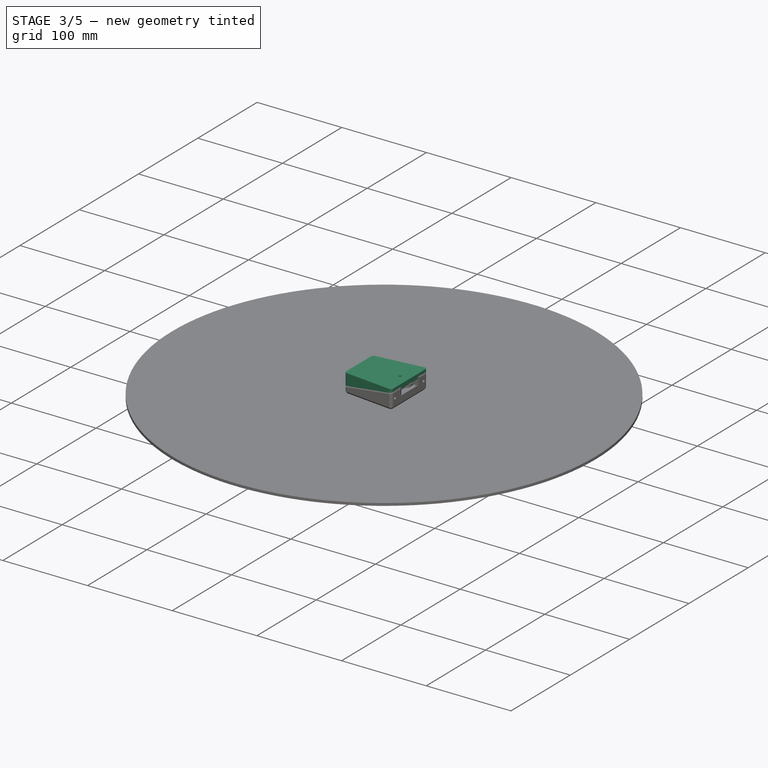
[diagram: stage 3 of 5 — iso view after this stage's code; geometry added in this stage tinted green]
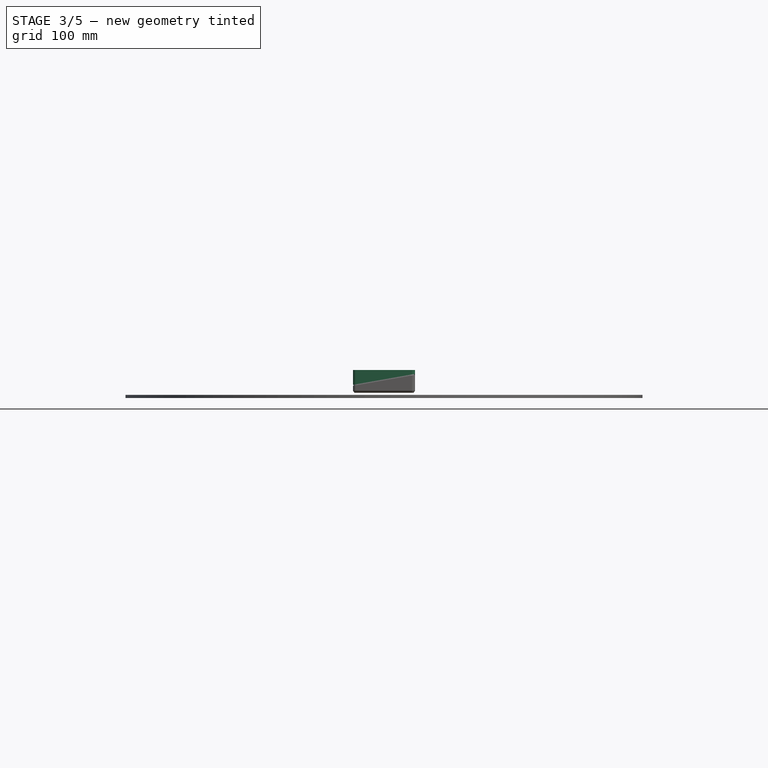
[diagram: stage 3 of 5 — front view after this stage's code; geometry added in this stage tinted green]
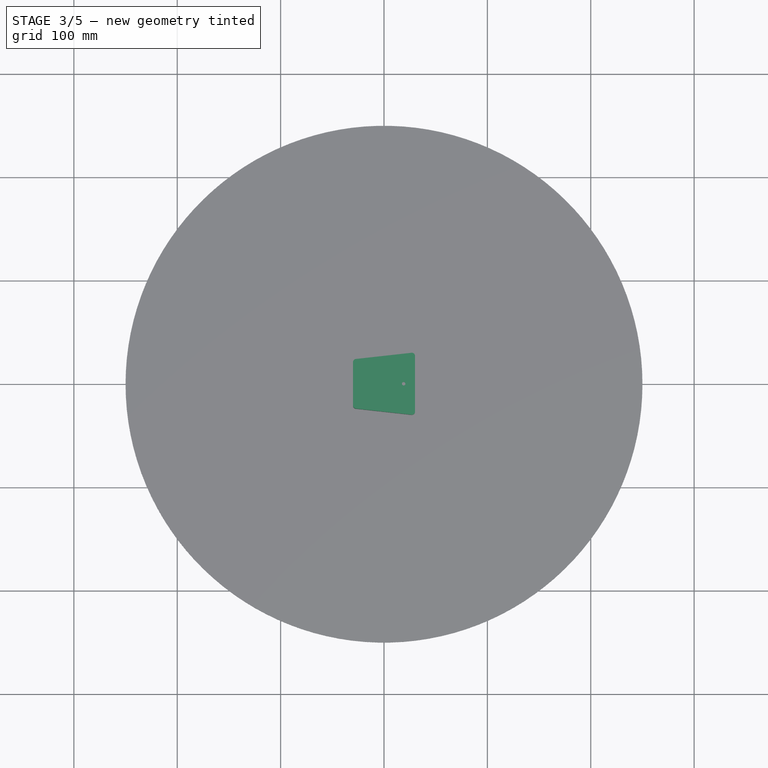
[diagram: stage 3 of 5 — top view after this stage's code; geometry added in this stage tinted green]
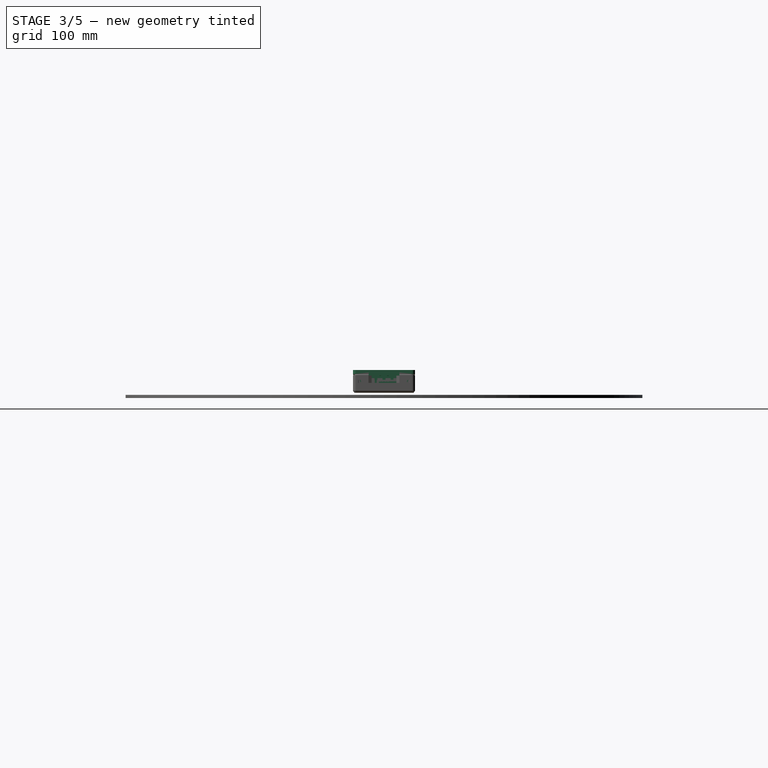
[diagram: stage 3 of 5 — right view after this stage's code; geometry added in this stage tinted green]
FEATURE [Sketcher::SketchObject] Sketch020  label="t Base shape"
  FullyConstrained = false
  MapMode = 5
  Support = -> [XY_Plane006]
  sketch-geometry (8):
    g0: LineSegment StartX=26.6687 StartY=29.9817 StartZ=0 EndX=-27.3313 EndY=23.9817 EndZ=0
    g1: LineSegment StartX=-27.3313 StartY=-23.9817 StartZ=0 EndX=26.6687 EndY=-29.9817 EndZ=0
    g2: LineSegment StartX=30 StartY=-27 StartZ=0 EndX=30 EndY=27 EndZ=0
    g3: ArcOfCircle CenterX=27 CenterY=27 CenterZ=0 NormalX=0 NormalY=0 NormalZ=1 AngleXU=0 Radius=3 StartAngle=3e-16 EndAngle=1.68145
    g4: ArcOfCircle CenterX=27 CenterY=-27 CenterZ=0 NormalX=0 NormalY=0 NormalZ=1 AngleXU=0 Radius=3 StartAngle=4.60173 EndAngle=6.28319
    g5: ArcOfCircle CenterX=-27 CenterY=-21 CenterZ=0 NormalX=0 NormalY=0 NormalZ=1 AngleXU=0 Radius=3 StartAngle=3.14159 EndAngle=4.60173
    g6: ArcOfCircle CenterX=-27 CenterY=21 CenterZ=0 NormalX=0 NormalY=0 NormalZ=1 AngleXU=0 Radius=3 StartAngle=1.68145 EndAngle=3.14159
    g7: LineSegment StartX=-30 StartY=21 StartZ=0 EndX=-30 EndY=-21 EndZ=0
  constraints (18):
    c: Vertical(g2)
    c: Tangent(g2,g3) = -1.5708
    c: Tangent(g0,g3) = -1.5708
    c: Tangent(g2,g4) = -1.5708
    c: Tangent(g1,g4) = -1.5708
    c: Symmetric(g4,g3,g-1)
    c: DistanceX(g2) = 30
    c: DistanceY(g2,g2) = 54
    c: Radius(g3) = 3
    c: Tangent(g1,g5) = -1.5708
    c: Tangent(g0,g6) = -1.5708
    c: Symmetric(g6,g5,g-1)
    c: DistanceY(g5,g6) = 42
    c: Equal(g3,g6)
    c: Vertical(g7)
    c: DistanceX(g7,g-1) = 30
    c: Tangent(g7,g6) = -1.5708
    c: Tangent(g5,g7) = -1.5708
FEATURE [PartDesign::Pad] Pad008  label="T Base shape"
  AllowMultiFace = false
  Direction = (1,1,1)
  Length = 14
  Length2 = 5
  Profile = -> Sketch020
  Type = 4
FEATURE [Sketcher::SketchObject] Sketch021  label="t Separation"
  FullyConstrained = false
  MapMode = 5
  Placement = pos=(0,0,0) rot=(1,0,0;1.5708rad)
  Support = -> [XZ_Plane006]
  sketch-geometry (5):
    g0: LineSegment StartX=31 StartY=-6 StartZ=0 EndX=-31 EndY=-6 EndZ=0
    g1: LineSegment StartX=-31 StartY=-6 StartZ=0 EndX=-31 EndY=-0.466136 EndZ=0
    g2: LineSegment StartX=-31 StartY=-0.466136 StartZ=0 EndX=31 EndY=10.4661 EndZ=0
    g3: LineSegment StartX=31 StartY=10.4661 StartZ=0 EndX=31 EndY=-6 EndZ=0
    g4: GeomPoint X=0 Y=5 Z=0
  constraints (13):
    c: Coincident(g0,g1)
    c: Coincident(g1,g2)
    c: Coincident(g2,g3)
    c: Coincident(g3,g0)
    c: Vertical(g1)
    c: Vertical(g3)
    c: Angle(g-1,g2) = 0.174533
    c: Symmetric(g0,g0,g-2)
    c: PointOnObject(g4,g2)
    c: PointOnObject(g4,g-2)
    c: DistanceY(g-1,g4) = 5
    c: DistanceX(g0,g0) = 62
    c: DistanceY(g0) = -6
FEATURE [PartDesign::Pocket] Pocket006  label="T Separation"
  AllowMultiFace = false
  BaseFeature = -> Pad008
  Direction = (1,1,1)
  Length = 5
  Length2 = 100
  Midplane = true
  Profile = -> Sketch021
  Type = 1
FEATURE [Sketcher::SketchObject] Sketch063  label="t Side pillars"
  AttachmentOffset = pos=(0,0,-2.5) rot=(0,0,1;0rad)
  FullyConstrained = false
  MapMode = 5
  Placement = pos=(0,0,-2.5) rot=(0,0,1;0rad)
  Support = -> [XY_Plane006]
  sketch-geometry (19):
    g0: LineSegment StartX=15.5 StartY=21 StartZ=0 EndX=15.5 EndY=24.5547 EndZ=0
    g1: LineSegment StartX=8.5 StartY=-23.819 StartZ=0 EndX=15.5 EndY=-24.5547 EndZ=0
    g2: LineSegment StartX=15.5 StartY=-24.5547 StartZ=0 EndX=15.5 EndY=-21 EndZ=0
    g3: ArcOfCircle CenterX=12 CenterY=21 CenterZ=0 NormalX=0 NormalY=0 NormalZ=1 AngleXU=0 Radius=3.5 StartAngle=3.14159 EndAngle=6.28319
    g4: ArcOfCircle CenterX=12 CenterY=-21 CenterZ=0 NormalX=0 NormalY=0 NormalZ=1 AngleXU=0 Radius=3.5 StartAngle=0 EndAngle=3.14159
    g5: ArcOfCircle CenterX=-25 CenterY=19 CenterZ=0 NormalX=0 NormalY=0 NormalZ=1 AngleXU=0 Radius=3 StartAngle=4.71239 EndAngle=6.83272
    g6: LineSegment StartX=-25 StartY=16 StartZ=0 EndX=-28.3 EndY=16 EndZ=0
    g7: LineSegment StartX=8.5 StartY=21 StartZ=0 EndX=8.5 EndY=23.819 EndZ=0
    g8: LineSegment StartX=-22.4417 StartY=20.5669 StartZ=0 EndX=8.5 EndY=23.819 EndZ=0
    g9: LineSegment StartX=8.5 StartY=-23.819 StartZ=0 EndX=8.5 EndY=-21 EndZ=0
    g10: LineSegment StartX=15.5 StartY=24.5547 StartZ=0 EndX=8.5 EndY=23.819 EndZ=0
    g11: LineSegment StartX=-22.4417 StartY=20.5669 StartZ=0 EndX=-26.5091 EndY=20.1394 EndZ=0
    g12: LineSegment StartX=-28.3 StartY=16 StartZ=0 EndX=-28.3 EndY=18.1503 EndZ=0
    g13: ArcOfCircle CenterX=-26.3 CenterY=18.1503 CenterZ=0 NormalX=0 NormalY=0 NormalZ=1 AngleXU=0 Radius=2 StartAngle=1.67552 EndAngle=3.14159
    g14: ArcOfCircle CenterX=-25 CenterY=-19 CenterZ=0 NormalX=0 NormalY=0 NormalZ=1 AngleXU=0 Radius=3 StartAngle=5.73365 EndAngle=7.85398
    g15: ArcOfCircle CenterX=-26.3 CenterY=-18.1503 CenterZ=0 NormalX=0 NormalY=0 NormalZ=1 AngleXU=0 Radius=2 StartAngle=3.14159 EndAngle=4.60767
    g16: LineSegment StartX=-22.4417 StartY=-20.5669 StartZ=0 EndX=-26.5091 EndY=-20.1394 EndZ=0
    g17: LineSegment StartX=-28.3 StartY=-18.1503 StartZ=0 EndX=-28.3 EndY=-16 EndZ=0
    g18: LineSegment StartX=-28.3 StartY=-16 StartZ=0 EndX=-25 EndY=-16 EndZ=0
  constraints (45):
    c: DistanceX(g6,g-1) = 28.3
    c: Vertical(g0)
    c: Coincident(g1,g2)
    c: Vertical(g2)
    c: Tangent(g0,g3) = -1.5708
    c: Tangent(g2,g4) = -1.5708
    c: Horizontal(g6)
    c: Tangent(g5,g6) = 1.5708
    c: DistanceY(g3) = 21
    c: Coincident(g8,g5)
    c: Coincident(g8,g7)
    c: Tangent(g7,g3) = 1.5708
    c: Distance(g-1,g8) = 22.8
    c: Angle(g-1,g8) = 0.10472
    c: DistanceX(g5,g-1) = 25
    c: Radius(g5) = 3
    c: Tangent(g4,g9) = 1.5708
    c: Symmetric(g4,g3,g-1)
    c: Symmetric(g9,g7,g-1)
    c: Vertical(g7)
    c: DistanceX(g3) = 8.5
    c: Coincident(g7,g10)
    c: Coincident(g0,g10)
    c: PointOnObject(g0,g8)
    c: Coincident(g11,g5)
    c: Vertical(g12)
    c: Tangent(g11,g13) = -1.5708
    c: Tangent(g12,g13) = 1.5708
    c: PointOnObject(g11,g8)
    c: Radius(g13) = 2
    c: Symmetric(g1,g0,g-1)
    c: Coincident(g6,g12)
    c: Tangent(g14,g18) = 1.5708
    c: Coincident(g17,g18)
    c: Tangent(g15,g17) = 1.5708
    c: Tangent(g15,g16) = 1.5708
    c: Coincident(g14,g16)
    c: Symmetric(g14,g5,g-1)
    c: Symmetric(g13,g15,g-1)
    c: Symmetric(g14,g5,g-1)
    c: Symmetric(g17,g6,g-1)
    c: Equal(g15,g13)
    c: DistanceY(g14,g5) = 38
    c: Coincident(g1,g9)
    c: DistanceX(g3) = 12
FEATURE [PartDesign::Pocket] Pocket032  label="T Large pocket"
  AllowMultiFace = false
  BaseFeature = -> Pocket006
  Direction = (1,1,1)
  Length = 5
  Length2 = 100
  Profile = -> Sketch040
  Type = 1
FEATURE [PartDesign::Pad] Pad015  label="T Pillars"
  AllowMultiFace = false
  BaseFeature = -> Pocket032
  Direction = (1,1,1)
  Length = 16
  Length2 = 100
  Profile = -> Sketch063
  Type = 0
FEATURE [PartDesign::Groove] Groove  label="T screwhole front left"
  AllowMultiFace = false
  Angle = 360
  Axis = (0,2.7e-15,-12)
  Base = (12,-21,8.8)
  BaseFeature = -> Pad015
  Profile = -> Sketch026
  ReferenceAxis = -> Sketch026 [Axis0]
  Reversed = true
FEATURE [PartDesign::Groove] Groove004  label="T screwhole rear left"
  AllowMultiFace = false
  Angle = 360
  Axis = (0,-3.1e-15,14)
  Base = (-25,-19,-17.5)
  BaseFeature = -> Groove
  Profile = -> Sketch027
  ReferenceAxis = -> Sketch027 [Axis0]
  Reversed = true
FEATURE [PartDesign::Mirrored] Mirrored013  label="T Screwholes right"
  BaseFeature = -> Groove004
  MirrorPlane = -> XZ_Plane006
  Originals = -> [Groove,Groove004]
FEATURE [PartDesign::Pocket] Pocket033  label="T Cutout nut"
  AllowMultiFace = false
  BaseFeature = -> Mirrored013
  Direction = (1,1,1)
  Length = 5
  Length2 = 100
  Profile = -> Sketch057
  Type = 1
FEATURE [PartDesign::Pocket] Pocket034  label="T Screw hole top"
  AllowMultiFace = false
  BaseFeature = -> Pocket033
  Direction = (1,1,1)
  Length = 5
  Length2 = 100
  Profile = -> Sketch037
  Reversed = true
  Type = 1
FEATURE [PartDesign::Pad] Pad016  label="T Protrusion screen front"
  AllowMultiFace = false
  BaseFeature = -> Pocket034
  Direction = (1,1,1)
  Length = 3
  Length2 = 100
  Profile = -> Sketch039
  Type = 0
FEATURE [PartDesign::Pad] Pad018  label="B ESP bottom support right"
  AllowMultiFace = false
  BaseFeature = -> Mirrored015
  Direction = (1,1,1)
  Length = 2
  Length2 = 100
  Profile = -> Sketch055
  Reversed = true
  Type = 0
FEATURE [PartDesign::Mirrored] Mirrored016  label="B ESP bottom support left"
  BaseFeature = -> Pad018
  MirrorPlane = -> XZ_Plane004
  Originals = -> [Pad018]
FEATURE [PartDesign::Pocket] Pocket038  label="B USB hole"
  AllowMultiFace = false
  BaseFeature = -> Mirrored016
  Direction = (1,1,1)
  Length = 5
  Length2 = 100
  Profile = -> Sketch051
  Type = 1
FEATURE [PartDesign::Pocket] Pocket039  label="B USB connector cutout"
  AllowMultiFace = false
  BaseFeature = -> Pocket038
  Direction = (1,1,1)
  Length = 5
  Length2 = 100
  Profile = -> Sketch053
  Type = 1
FEATURE [PartDesign::Pocket] Pocket040  label="B First vent hole"
  AllowMultiFace = false
  BaseFeature = -> Pocket039
  Direction = (1,1,1)
  Length = 5
  Length2 = 100
  Profile = -> Sketch052
  Type = 1
FEATURE [PartDesign::LinearPattern] LinearPattern004
  Direction = -> X_Axis004
  Length = 30
  Occurrences = 10
FEATURE [PartDesign::Mirrored] Mirrored017
  MirrorPlane = -> XZ_Plane004
FEATURE [PartDesign::MultiTransform] MultiTransform002  label="B Other vent holes"
  BaseFeature = -> Pocket040
  Originals = -> [Pocket040]
  Transformations = -> [LinearPattern004,Mirrored017]
FEATURE [PartDesign::Body] Body010  label="Top"
  Group = -> [Sketch020,Pad008,Sketch021,Pocket006,Sketch023,Sketch025,Sketch026,Sketch027,Sketch035,Sketch036,Sketch037,Sketch039,Sketch040,Sketch054,Sketch057,Sketch063,Pocket032,Pad015,Groove,Groove004,Mirrored013,Pocket033,Pocket034,Pad016,SubtractivePipe,Pocket035,Pocket036,Sketch064,Pad017,Mirrored014,SubtractivePipe002]
  Origin = -> Origin006
  Tip = -> SubtractivePipe002
FEATURE [Sketcher::SketchObject] Sketch065  label="b rib behind screen"
  AttachmentOffset = pos=(0,0,8) rot=(0,0,1;0rad)
  FullyConstrained = false
  MapMode = 5
  Placement = pos=(0,-8,-1.8e-15) rot=(1,0,0;1.5708rad)
  Support = -> [XZ_Plane004]
  sketch-geometry (5):
    g0: LineSegment StartX=24.6 StartY=9.5 StartZ=0 EndX=21.6 EndY=9.5 EndZ=0
    g1: LineSegment StartX=18.6 StartY=3.06648 StartZ=0 EndX=18.6 EndY=-6.5 EndZ=0
    g2: LineSegment StartX=18.6 StartY=-6.5 StartZ=0 EndX=24.6 EndY=-6.5 EndZ=0
    g3: LineSegment StartX=24.6 StartY=-6.5 StartZ=0 EndX=24.6 EndY=9.5 EndZ=0
    g4: LineSegment StartX=21.6 StartY=9.5 StartZ=0 EndX=18.6 EndY=3.06648 EndZ=0
  constraints (15):
    c: Coincident(g1,g2)
    c: Coincident(g2,g3)
    c: Coincident(g3,g0)
    c: Horizontal(g0)
    c: Horizontal(g2)
    c: Vertical(g1)
    c: Vertical(g3)
    c: DistanceY(g1,g-1) = 6.5
    c: DistanceX(g2) = 24.6
    c: Coincident(g0,g4)
    c: Coincident(g4,g1)
    c: DistanceX(g2,g2) = 6
    c: DistanceX(g0,g0) = 3
    c: Angle(g4,g3) = 0.436332
    c: DistanceY(g3,g3) = 16
FEATURE [PartDesign::Pad] Pad019  label="B Rib behind screen"
  AllowMultiFace = false
  BaseFeature = -> MultiTransform002
  Direction = (1,1,1)
  Length = 2
  Length2 = 100
  Midplane = true
  Profile = -> Sketch065
  Type = 0
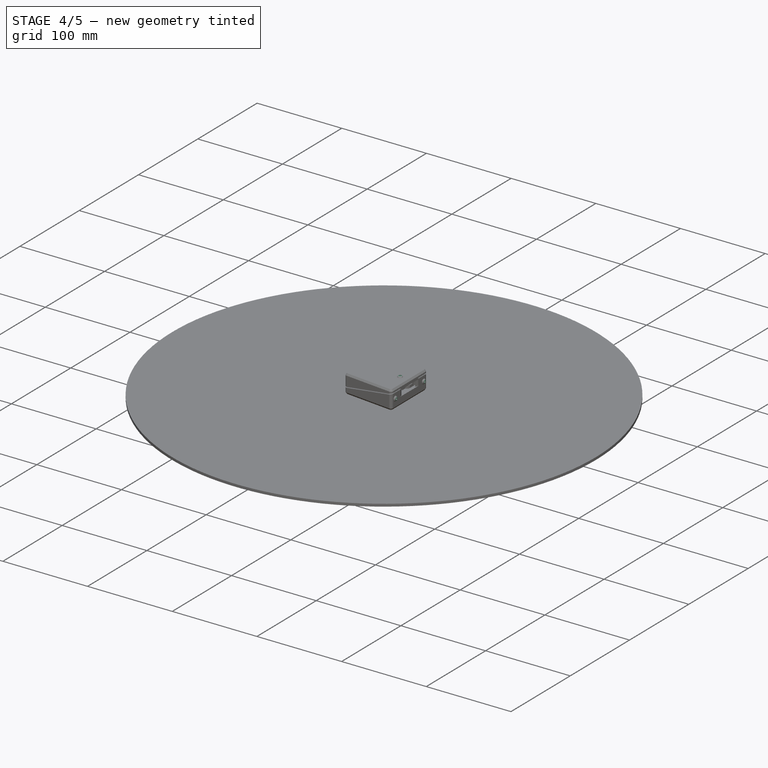
[diagram: stage 4 of 5 — iso view after this stage's code; geometry added in this stage tinted green]
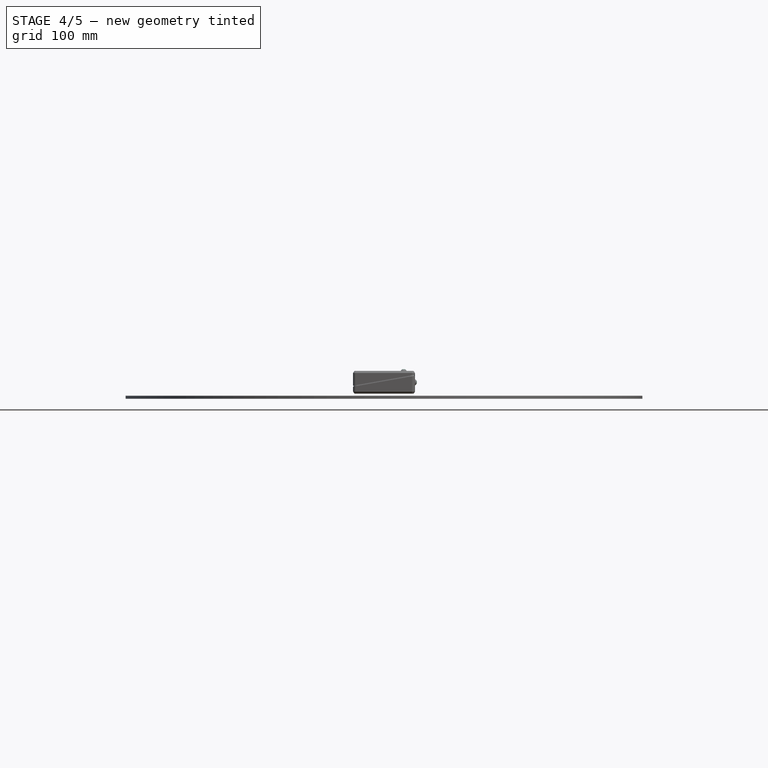
[diagram: stage 4 of 5 — front view after this stage's code; geometry added in this stage tinted green]
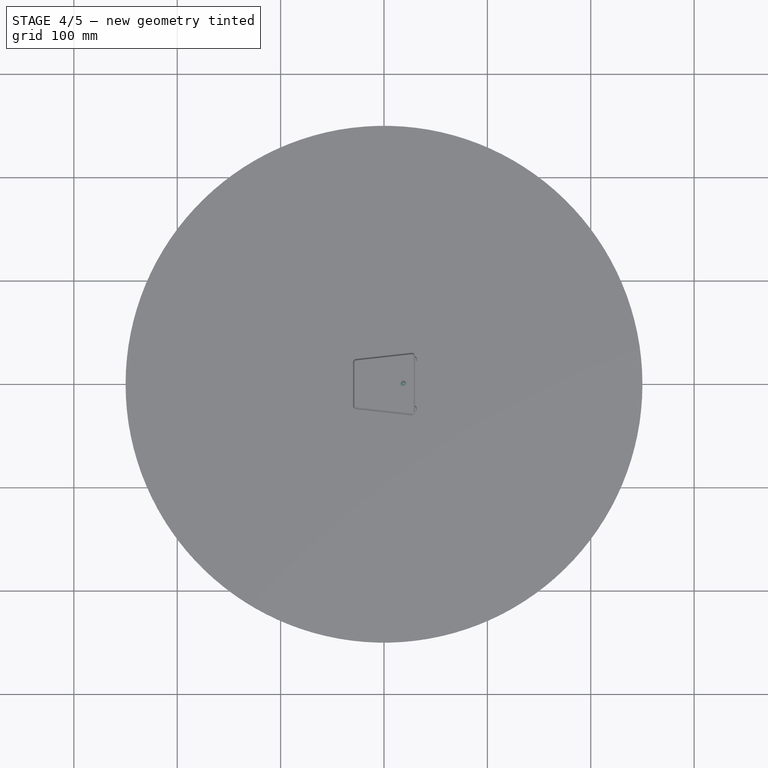
[diagram: stage 4 of 5 — top view after this stage's code; geometry added in this stage tinted green]
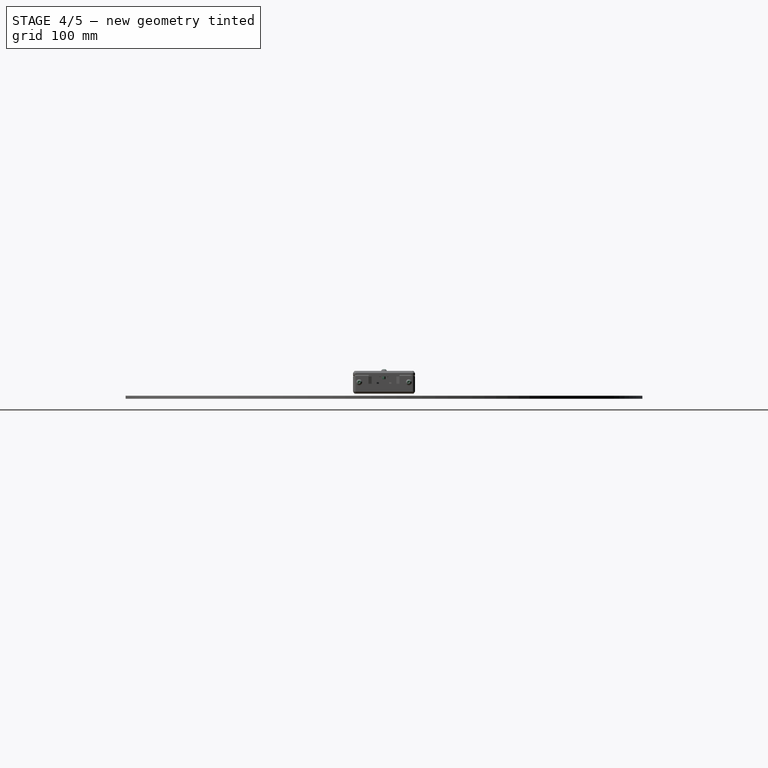
[diagram: stage 4 of 5 — right view after this stage's code; geometry added in this stage tinted green]
FEATURE [PartDesign::Body] Body009  label="SelftappingScrew 2.3x12 - Bottom4"
  Group = -> [Sketch017,Revolution005,Sketch018,Pocket005,PolarPattern005]
  Placement = pos=(12,-21,-6.7) rot=(0,1,0;3.14159rad)
  Tip = -> PolarPattern005
FEATURE [Part::FeaturePython] Screw  label="M3x12-Screw"  # Fasteners workbench fastener (typed FeaturePython)
  Placement = pos=(30,24,3) rot=(0,1,0;1.5708rad)
  diameter = 1
  invert = false
  leftHanded = false
  length = 3
  lengthCustom = 6
  matchOuter = false
  offset = 0
  thread = false
  type = 20
FEATURE [Part::FeaturePython] Screw001  label="M3x12-Screw001"  # Fasteners workbench fastener (typed FeaturePython)
  Placement = pos=(30,-24,3) rot=(0,1,0;1.5708rad)
  diameter = 1
  invert = false
  leftHanded = false
  length = 3
  lengthCustom = 6
  matchOuter = false
  offset = 0
  thread = false
  type = 20
FEATURE [Part::FeaturePython] Screw002  label="M3x8-Screw"  # Fasteners workbench fastener (typed FeaturePython)
  Placement = pos=(19,0,14) rot=(0,0,1;1.5708rad)
  diameter = 1
  invert = false
  leftHanded = false
  length = 1
  lengthCustom = 6
  matchOuter = false
  offset = 0
  thread = false
  type = 20
FEATURE [Sketcher::SketchObject] Sketch050  label="m corner cutout"
  FullyConstrained = false
  MapMode = 5
  Support = -> [XY_Plane007]
  sketch-geometry (5):
    g0: LineSegment StartX=8.3 StartY=30 StartZ=0 EndX=18.3 EndY=30 EndZ=0
    g1: LineSegment StartX=18.3 StartY=30 StartZ=0 EndX=18.3 EndY=17.3 EndZ=0
    g2: LineSegment StartX=8.3 StartY=21 StartZ=0 EndX=8.3 EndY=30 EndZ=0
    g3: ArcOfCircle CenterX=12 CenterY=21 CenterZ=0 NormalX=0 NormalY=0 NormalZ=1 AngleXU=0 Radius=3.7 StartAngle=3.14159 EndAngle=4.71239
    g4: LineSegment StartX=12 StartY=17.3 StartZ=0 EndX=18.3 EndY=17.3 EndZ=0
  constraints (14):
    c: Coincident(g0,g1)
    c: Coincident(g2,g0)
    c: Horizontal(g0)
    c: Vertical(g1)
    c: DistanceX(g0,g0) = 10
    c: DistanceX(g2) = 8.3
    c: Vertical(g2)
    c: DistanceY(g0) = 30
    c: Horizontal(g4)
    c: DistanceX(g3) = 12
    c: DistanceY(g3) = 21
    c: Tangent(g3,g4) = -1.5708
    c: Coincident(g4,g1)
    c: Tangent(g2,g3) = 1.5708
FEATURE [Sketcher::SketchObject] Sketch051  label="b USB hole"
  AttachmentOffset = pos=(0,0,-25) rot=(0,0,1;0rad)
  FullyConstrained = false
  MapMode = 5
  Placement = pos=(-25,5.6e-15,-5.6e-15) rot=(0.57735,0.57735,0.57735;2.0944rad)
  Support = -> [YZ_Plane004]
  sketch-geometry (10):
    g0: ArcOfCircle CenterX=-3.3 CenterY=-2.5 CenterZ=0 NormalX=0 NormalY=0 NormalZ=1 AngleXU=0 Radius=1.2 StartAngle=3.14159 EndAngle=3.92699
    g1: ArcOfCircle CenterX=-2.8 CenterY=-3 CenterZ=0 NormalX=0 NormalY=0 NormalZ=1 AngleXU=0 Radius=1.2 StartAngle=3.92699 EndAngle=4.71239
    g2: ArcOfCircle CenterX=2.8 CenterY=-3 CenterZ=0 NormalX=0 NormalY=0 NormalZ=1 AngleXU=0 Radius=1.2 StartAngle=4.71239 EndAngle=5.49779
    g3: ArcOfCircle CenterX=3.3 CenterY=-2.5 CenterZ=0 NormalX=0 NormalY=0 NormalZ=1 AngleXU=0 Radius=1.2 StartAngle=5.49779 EndAngle=6.28319
    g4: LineSegment StartX=4.5 StartY=-2.5 StartZ=0 EndX=4.5 EndY=6 EndZ=0
    g5: LineSegment StartX=4.5 StartY=6 StartZ=0 EndX=-4.5 EndY=6 EndZ=0
    g6: LineSegment StartX=-4.5 StartY=6 StartZ=0 EndX=-4.5 EndY=-2.5 EndZ=0
    g7: LineSegment StartX=-4.14853 StartY=-3.34853 StartZ=0 EndX=-3.64853 EndY=-3.84853 EndZ=0
    g8: LineSegment StartX=4.14853 StartY=-3.34853 StartZ=0 EndX=3.64853 EndY=-3.84853 EndZ=0
    g9: LineSegment StartX=2.8 StartY=-4.2 StartZ=0 EndX=-2.8 EndY=-4.2 EndZ=0
  constraints (24):
    c: Coincident(g4,g5)
    c: Coincident(g5,g6)
    c: Horizontal(g5)
    c: Vertical(g4)
    c: Vertical(g6)
    c: Symmetric(g3,g0,g-2)
    c: Symmetric(g2,g1,g-2)
    c: Tangent(g0,g6) = -1.5708
    c: Horizontal(g9)
    c: Tangent(g1,g9) = 1.5708
    c: Tangent(g1,g7) = -1.5708
    c: Tangent(g0,g7) = -1.5708
    c: Tangent(g2,g9) = 1.5708
    c: Tangent(g2,g8) = 1.5708
    c: Tangent(g3,g8) = 1.5708
    c: Tangent(g3,g4) = -1.5708
    c: DistanceX(g5,g5) = 9
    c: Radius(g0) = 1.2
    c: Equal(g1,g0)
    c: Equal(g2,g3)
    c: DistanceY(g2,g-1) = 4.2
    c: DistanceY(g2,g3) = 0.5
    c: DistanceY(g4) = 6
    c: DistanceX(g9,g9) = 5.6
FEATURE [Sketcher::SketchObject] Sketch052  label="b vent hole"
  FullyConstrained = false
  MapMode = 5
  Support = -> [XY_Plane004]
  sketch-geometry (4):
    g0: ArcOfCircle CenterX=-25 CenterY=-2 CenterZ=0 NormalX=0 NormalY=0 NormalZ=1 AngleXU=0 Radius=0.75 StartAngle=1e-15 EndAngle=3.14159
    g1: ArcOfCircle CenterX=-25 CenterY=-14 CenterZ=0 NormalX=0 NormalY=0 NormalZ=1 AngleXU=0 Radius=0.75 StartAngle=3.14159 EndAngle=6.28319
    g2: LineSegment StartX=-25.75 StartY=-2 StartZ=0 EndX=-25.75 EndY=-14 EndZ=0
    g3: LineSegment StartX=-24.25 StartY=-2 StartZ=0 EndX=-24.25 EndY=-14 EndZ=0
  constraints (10):
    c: Tangent(g0,g3) = 1.5708
    c: Tangent(g0,g2) = -1.5708
    c: Tangent(g2,g1) = -1.5708
    c: Tangent(g3,g1) = 1.5708
    c: Vertical(g2)
    c: Equal(g0,g1)
    c: DistanceX(g0,g-1) = 25
    c: DistanceX(g0,g0) = 1.5
    c: DistanceY(g0,g-1) = 2
    c: DistanceY(g2,g2) = 12
FEATURE [Sketcher::SketchObject] Sketch053  label="b USB connector cutout"
  AttachmentOffset = pos=(0,0,-29.3) rot=(0,0,1;0rad)
  FullyConstrained = false
  MapMode = 5
  Placement = pos=(-29.3,6.5e-15,-6.5e-15) rot=(0.57735,0.57735,0.57735;2.0944rad)
  Support = -> [YZ_Plane004]
  sketch-geometry (8):
    g0: LineSegment StartX=-4 StartY=2 StartZ=0 EndX=4 EndY=2 EndZ=0
    g1: LineSegment StartX=7 StartY=-1 StartZ=0 EndX=7 EndY=-3 EndZ=0
    g2: LineSegment StartX=4 StartY=-6 StartZ=0 EndX=-4 EndY=-6 EndZ=0
    g3: LineSegment StartX=-7 StartY=-3 StartZ=0 EndX=-7 EndY=-1 EndZ=0
    g4: ArcOfCircle CenterX=4 CenterY=-1 CenterZ=0 NormalX=0 NormalY=0 NormalZ=1 AngleXU=0 Radius=3 StartAngle=0 EndAngle=1.5708
    g5: ArcOfCircle CenterX=-4 CenterY=-1 CenterZ=0 NormalX=0 NormalY=0 NormalZ=1 AngleXU=0 Radius=3 StartAngle=1.5708 EndAngle=3.14159
    g6: ArcOfCircle CenterX=-4 CenterY=-3 CenterZ=0 NormalX=0 NormalY=0 NormalZ=1 AngleXU=0 Radius=3 StartAngle=3.14159 EndAngle=4.71239
    g7: ArcOfCircle CenterX=4 CenterY=-3 CenterZ=0 NormalX=0 NormalY=0 NormalZ=1 AngleXU=0 Radius=3 StartAngle=4.71239 EndAngle=6.28319
  constraints (19):
    c: Horizontal(g0)
    c: Horizontal(g2)
    c: Vertical(g1)
    c: Vertical(g3)
    c: Tangent(g0,g4) = 1.5708
    c: Tangent(g1,g4) = 1.5708
    c: Tangent(g3,g5) = 1.5708
    c: Tangent(g0,g5) = 1.5708
    c: Tangent(g3,g6) = 1.5708
    c: Tangent(g2,g6) = 1.5708
    c: Tangent(g2,g7) = 1.5708
    c: Tangent(g1,g7) = 1.5708
    c: Equal(g4,g7)
    c: Equal(g7,g6)
    c: DistanceY(g2,g-1) = 6
    c: DistanceY(g2,g0) = 8
    c: Symmetric(g5,g4,g-2)
    c: DistanceX(g3,g1) = 14
    c: Radius(g4) = 3
FEATURE [Sketcher::SketchObject] Sketch054  label="t USB connector cutout"
  AttachmentOffset = pos=(0,0,-29.3) rot=(0,0,1;0rad)
  FullyConstrained = false
  MapMode = 5
  Placement = pos=(-29.3,6.5e-15,-6.5e-15) rot=(0.57735,0.57735,0.57735;2.0944rad)
  Support = -> [YZ_Plane006]
  sketch-geometry (8):
    g0: LineSegment StartX=-4 StartY=2 StartZ=0 EndX=4 EndY=2 EndZ=0
    g1: LineSegment StartX=7 StartY=-1 StartZ=0 EndX=7 EndY=-3 EndZ=0
    g2: LineSegment StartX=4 StartY=-6 StartZ=0 EndX=-4 EndY=-6 EndZ=0
    g3: LineSegment StartX=-7 StartY=-3 StartZ=0 EndX=-7 EndY=-1 EndZ=0
    g4: ArcOfCircle CenterX=4 CenterY=-1 CenterZ=0 NormalX=0 NormalY=0 NormalZ=1 AngleXU=0 Radius=3 StartAngle=0 EndAngle=1.5708
    g5: ArcOfCircle CenterX=-4 CenterY=-1 CenterZ=0 NormalX=0 NormalY=0 NormalZ=1 AngleXU=0 Radius=3 StartAngle=1.5708 EndAngle=3.14159
    g6: ArcOfCircle CenterX=-4 CenterY=-3 CenterZ=0 NormalX=0 NormalY=0 NormalZ=1 AngleXU=0 Radius=3 StartAngle=3.14159 EndAngle=4.71239
    g7: ArcOfCircle CenterX=4 CenterY=-3 CenterZ=0 NormalX=0 NormalY=0 NormalZ=1 AngleXU=0 Radius=3 StartAngle=4.71239 EndAngle=6.28319
  constraints (19):
    c: Horizontal(g0)
    c: Horizontal(g2)
    c: Vertical(g1)
    c: Vertical(g3)
    c: Tangent(g0,g4) = 1.5708
    c: Tangent(g1,g4) = 1.5708
    c: Tangent(g3,g5) = 1.5708
    c: Tangent(g0,g5) = 1.5708
    c: Tangent(g3,g6) = 1.5708
    c: Tangent(g2,g6) = 1.5708
    c: Tangent(g2,g7) = 1.5708
    c: Tangent(g1,g7) = 1.5708
    c: Equal(g4,g7)
    c: Equal(g7,g6)
    c: DistanceY(g2,g-1) = 6
    c: DistanceY(g2,g0) = 8
    c: Symmetric(g5,g4,g-2)
    c: DistanceX(g3,g1) = 14
    c: Radius(g4) = 3
FEATURE [Sketcher::SketchObject] Sketch055  label="b ESP bottom support "
  AttachmentOffset = pos=(0,0,-5.2) rot=(0,0,1;0rad)
  FullyConstrained = false
  MapMode = 5
  Placement = pos=(0,0,-5.2) rot=(0,0,1;0rad)
  Support = -> [XY_Plane004]
  sketch-geometry (5):
    g0: ArcOfCircle CenterX=-28.1 CenterY=8 CenterZ=0 NormalX=0 NormalY=0 NormalZ=1 AngleXU=0 Radius=1.5 StartAngle=5.06145 EndAngle=7.50492
    g1: LineSegment StartX=-27.587 StartY=9.40954 StartZ=0 EndX=-28.6 EndY=9.77825 EndZ=0
    g2: LineSegment StartX=-28.6 StartY=9.77825 StartZ=0 EndX=-28.6 EndY=6.22175 EndZ=0
    g3: LineSegment StartX=-28.6 StartY=6.22175 StartZ=0 EndX=-27.587 EndY=6.59046 EndZ=0
    g4: LineSegment StartX=-28.1 StartY=8 StartZ=0 EndX=-28.6 EndY=8 EndZ=0
  constraints (13):
    c: Coincident(g1,g2)
    c: Vertical(g2)
    c: Coincident(g2,g3)
    c: Tangent(g0,g3) = -1.5708
    c: Tangent(g0,g1) = -1.5708
    c: Coincident(g4,g0)
    c: PointOnObject(g4,g2)
    c: Symmetric(g2,g1,g4)
    c: Angle(g1,g3) = 0.698132
    c: Radius(g0) = 1.5
    c: DistanceX(g1,g-1) = 28.6
    c: DistanceX(g4,g4) = 0.5
    c: DistanceY(g-1,g0) = 8
FEATURE [Part::FeaturePython] Nut  label="M3-Nut"  # Fasteners workbench fastener (typed FeaturePython)
  Placement = pos=(23,24,3) rot=(0.129428,-0.983106,-0.129428;1.58783rad)
  diameter = 4
  invert = false
  leftHanded = false
  matchOuter = false
  offset = 0
  thread = false
  type = 4
FEATURE [Sketcher::SketchObject] Sketch056  label="b Cutout for nut"
  AttachmentOffset = pos=(0,0,23.5) rot=(0,0,1;0rad)
  FullyConstrained = false
  MapMode = 5
  Placement = pos=(23.5,-5.2e-15,5.2e-15) rot=(0.57735,0.57735,0.57735;2.0944rad)
  Support = -> [YZ_Plane004]
  sketch-geometry (9):
    g0: LineSegment StartX=27.2345 StartY=2.13331 StartZ=0 EndX=24.8587 EndY=11 EndZ=0
    g1: LineSegment StartX=20.7655 StartY=3.86669 StartZ=0 EndX=21.6322 EndY=0.63216 EndZ=0
    g2: LineSegment StartX=21.6322 StartY=0.63216 StartZ=0 EndX=24.8667 EndY=-0.23453 EndZ=0
    g3: Circle CenterX=24 CenterY=3 CenterZ=0 NormalX=0 NormalY=0 NormalZ=1 AngleXU=0 Radius=3.34863
    g4: LineSegment StartX=24.8587 StartY=11 StartZ=0 EndX=13.6322 EndY=11 EndZ=0
    g5: LineSegment StartX=20.7655 StartY=3.86669 StartZ=0 EndX=23.1333 EndY=6.23453 EndZ=0
    g6: LineSegment StartX=23.1333 StartY=6.23453 StartZ=0 EndX=26.3678 EndY=5.36784 EndZ=0
    g7: LineSegment StartX=13.6322 StartY=11 StartZ=0 EndX=20.7655 EndY=3.86669 EndZ=0
    g8: LineSegment StartX=27.2345 StartY=2.13331 StartZ=0 EndX=24.8667 EndY=-0.23453 EndZ=0
  constraints (27):
    c: Coincident(g1,g2)
    c: PointOnObject(g1,g3)
    c: PointOnObject(g2,g3)
    c: DistanceX(g3) = 24
    c: DistanceY(g3) = 3
    c: Coincident(g4,g0)
    c: Horizontal(g4)
    c: DistanceY(g0) = 11
    c: Coincident(g1,g5)
    c: PointOnObject(g5,g3)
    c: Coincident(g5,g6)
    c: PointOnObject(g6,g0)
    c: PointOnObject(g6,g3)
    c: Equal(g6,g5)
    c: Equal(g5,g1)
    c: Equal(g1,g2)
    c: PointOnObject(g0,g3)
    c: PointOnObject(g1,g3)
    c: Angle(g-2,g0) = 0.261799
    c: Distance(g1,g0) = 5.8
    c: Coincident(g7,g4)
    c: Coincident(g7,g1)
    c: Angle(g0,g7) = 0.523599
    c: Coincident(g2,g8)
    c: Coincident(g0,g8)
    c: Equal(g8,g2)
    c: Parallel(g8,g5)
FEATURE [Part::FeaturePython] Nut001  label="M3-Nut001"  # Fasteners workbench fastener (typed FeaturePython)
  Placement = pos=(19,0,12) rot=(0.965926,0.258819,0;3.14159rad)
  diameter = 4
  invert = false
  leftHanded = false
  matchOuter = false
  offset = 0
  thread = false
  type = 4
FEATURE [Sketcher::SketchObject] Sketch057  label="t Cutout nut"
  AttachmentOffset = pos=(0,0,12) rot=(0,0,1;0rad)
  FullyConstrained = false
  MapMode = 5
  Placement = pos=(0,0,12) rot=(0,0,1;0rad)
  Support = -> [XY_Plane006]
  sketch-geometry (8):
    g0: LineSegment StartX=21.9 StartY=-1.67432 StartZ=0 EndX=21.9 EndY=1.67432 EndZ=0
    g1: LineSegment StartX=21.9 StartY=1.67432 StartZ=0 EndX=15.9011 EndY=5.13778 EndZ=0
    g2: LineSegment StartX=16.1 StartY=1.67432 StartZ=0 EndX=16.1 EndY=-1.67432 EndZ=0
    g3: LineSegment StartX=15.9011 StartY=-5.13778 StartZ=0 EndX=21.9 EndY=-1.67432 EndZ=0
    g4: Circle CenterX=19 CenterY=0 CenterZ=0 NormalX=0 NormalY=0 NormalZ=1 AngleXU=0 Radius=3.34863
    g5: LineSegment StartX=19 StartY=3.34863 StartZ=0 EndX=16.1 EndY=1.67432 EndZ=0
    g6: LineSegment StartX=16.1 StartY=-1.67432 StartZ=0 EndX=19 EndY=-3.34863 EndZ=0
    g7: ArcOfCircle CenterX=19 CenterY=0 CenterZ=0 NormalX=0 NormalY=0 NormalZ=1 AngleXU=0 Radius=6 StartAngle=2.11354 EndAngle=4.16965
  constraints (26):
    c: Coincident(g0,g1)
    c: Coincident(g3,g0)
    c: Equal(g0,g2)
    c: PointOnObject(g0,g4)
    c: PointOnObject(g2,g4)
    c: PointOnObject(g2,g4)
    c: PointOnObject(g3,g4)
    c: PointOnObject(g4,g-1)
    c: Vertical(g0)
    c: Vertical(g2)
    c: Angle(g1,g3) = 1.0472
    c: DistanceX(g2,g0) = 5.8
    c: DistanceX(g4) = 19
    c: Equal(g0,g2)
    c: PointOnObject(g5,g1)
    c: Coincident(g5,g2)
    c: Coincident(g6,g2)
    c: PointOnObject(g6,g3)
    c: PointOnObject(g6,g4)
    c: PointOnObject(g5,g4)
    c: Equal(g5,g6)
    c: Equal(g6,g2)
    c: Coincident(g7,g4)
    c: Coincident(g7,g1)
    c: Coincident(g7,g3)
    c: Radius(g7) = 6
FEATURE [Sketcher::SketchObject] Sketch058  label="m base shape +15"
  AttachmentOffset = pos=(0,0,15) rot=(0,0,1;0rad)
  FullyConstrained = false
  MapMode = 5
  Placement = pos=(15,-3.3e-15,3.3e-15) rot=(0.57735,0.57735,0.57735;2.0944rad)
  Support = -> [YZ_Plane007]
  sketch-geometry (12):
    g0: LineSegment StartX=-22.6 StartY=3 StartZ=0 EndX=22.6 EndY=3 EndZ=0
    g1: LineSegment StartX=24.6 StartY=1.5359 StartZ=0 EndX=24.6 EndY=-6.3 EndZ=0
    g2: LineSegment StartX=24.6 StartY=-6.3 StartZ=0 EndX=22.6 EndY=-6.3 EndZ=0
    g3: LineSegment StartX=-24.6 StartY=-6.3 StartZ=0 EndX=-24.6 EndY=1.5359 EndZ=0
    g4: LineSegment StartX=-22.6 StartY=-6.3 StartZ=0 EndX=-22.6 EndY=1 EndZ=0
    g5: LineSegment StartX=-22.6 StartY=1 StartZ=0 EndX=22.6 EndY=1 EndZ=0
    g6: LineSegment StartX=22.6 StartY=1 StartZ=0 EndX=22.6 EndY=-6.3 EndZ=0
    g7: LineSegment StartX=-22.6 StartY=-6.3 StartZ=0 EndX=-24.6 EndY=-6.3 EndZ=0
    g8: ArcOfCircle CenterX=-22.6 CenterY=1 CenterZ=0 NormalX=0 NormalY=0 NormalZ=1 AngleXU=0 Radius=2 StartAngle=1.5708 EndAngle=2.61799
    g9: LineSegment StartX=-24.3321 StartY=2 StartZ=0 EndX=-24.6 EndY=1.5359 EndZ=0
    g10: ArcOfCircle CenterX=22.6 CenterY=1 CenterZ=0 NormalX=0 NormalY=0 NormalZ=1 AngleXU=0 Radius=2 StartAngle=0.523599 EndAngle=1.5708
    g11: LineSegment StartX=24.3321 StartY=2 StartZ=0 EndX=24.6 EndY=1.5359 EndZ=0
  constraints (29):
    c: Coincident(g1,g2)
    c: Coincident(g7,g3)
    c: Horizontal(g0)
    c: Vertical(g1)
    c: Vertical(g3)
    c: Coincident(g4,g5)
    c: Coincident(g5,g6)
    c: Vertical(g4)
    c: Vertical(g6)
    c: Tangent(g2,g7)
    c: Coincident(g4,g7)
    c: Coincident(g6,g2)
    c: DistanceY(g2,g-1) = 6.3
    c: Symmetric(g3,g1,g-2)
    c: Coincident(g8,g4)
    c: Tangent(g0,g8) = 1.5708
    c: DistanceY(g0) = 3
    c: DistanceX(g7,g7) = 2
    c: DistanceY(g4) = 1
    c: Tangent(g9,g8) = -1.5708
    c: Coincident(g3,g9)
    c: Angle(g9,g4) = 0.523599
    c: Symmetric(g5,g4,g-2)
    c: Coincident(g10,g5)
    c: Tangent(g0,g10) = 1.5708
    c: Tangent(g10,g11) = 1.5708
    c: Coincident(g1,g11)
    c: Horizontal(g1,g3)
    c: DistanceX(g3,g1) = 49.2
FEATURE [PartDesign::AdditiveLoft] AdditiveLoft  label="M Base shape"
  AllowMultiFace = false
  Closed = false
  Placement = pos=(0,0,0) rot=(0.57735,0.57735,0.57735;2.0944rad)
  Profile = -> Sketch046
  Ruled = false
  Sections = -> [Sketch058]
FEATURE [PartDesign::Pocket] Pocket027  label="M Screw holes"
  AllowMultiFace = false
  BaseFeature = -> AdditiveLoft
  Direction = (1,1,1)
  Length = 5
  Length2 = 100
  Midplane = true
  Placement = pos=(0,0,0) rot=(0.57735,0.57735,0.57735;2.0944rad)
  Profile = -> Sketch047
  Type = 1
FEATURE [PartDesign::Pocket] Pocket028  label="M Wire cutout"
  AllowMultiFace = false
  BaseFeature = -> Pocket027
  Direction = (1,1,1)
  Length = 5
  Length2 = 100
  Midplane = true
  Placement = pos=(0,0,0) rot=(0.57735,0.57735,0.57735;2.0944rad)
  Profile = -> Sketch048
  Type = 1
FEATURE [PartDesign::Pocket] Pocket030  label="M Cutout for bottom right"
  AllowMultiFace = false
  BaseFeature = -> Pocket028
  Direction = (1,1,1)
  Length = 5
  Length2 = 100
  Midplane = true
  Placement = pos=(0,0,0) rot=(0.57735,0.57735,0.57735;2.0944rad)
  Profile = -> Sketch050
  Type = 1
FEATURE [PartDesign::Mirrored] Mirrored011  label="M Cutout and lock left"
  BaseFeature = -> Pocket030
  MirrorPlane = -> XZ_Plane007
  Originals = -> [Pocket030]
  Placement = pos=(0,0,0) rot=(0.57735,0.57735,0.57735;2.0944rad)
FEATURE [PartDesign::SubtractivePipe] SubtractivePipe  label="T Chamfer"
  AllowMultiFace = false
  AuxilleryCurvelinear = true
  AuxillerySpineTangent = false
  BaseFeature = -> Pad016
  Binormal = (0,0,0)
  Mode = 0
  Profile = -> Sketch035
  Spine = -> Sketch020
  SpineTangent = false
  Transformation = 0
  Transition = 0
FEATURE [PartDesign::Pocket] Pocket035  label="T pocket screen"
  AllowMultiFace = false
  BaseFeature = -> SubtractivePipe
  Direction = (1,1,1)
  Length = 5
  Length2 = 100
  Profile = -> Sketch036
  Type = 1
FEATURE [PartDesign::Pocket] Pocket036  label="T USB connector cutout"
  AllowMultiFace = false
  BaseFeature = -> Pocket035
  Direction = (1,1,1)
  Length = 5
  Length2 = 100
  Profile = -> Sketch054
  Type = 1
FEATURE [Sketcher::SketchObject] Sketch064  label="t keep bridge down"
  AttachmentOffset = pos=(0,0,3.3) rot=(0,0,1;0rad)
  FullyConstrained = false
  MapMode = 5
  Placement = pos=(0,0,3.3) rot=(0,0,1;0rad)
  Support = -> [XY_Plane006]
  sketch-geometry (4):
    g0: LineSegment StartX=1.40954 StartY=20.487 StartZ=0 EndX=2.4646 EndY=23.3857 EndZ=0
    g1: LineSegment StartX=2.4646 StartY=23.3857 StartZ=0 EndX=-2.28298 EndY=22.8867 EndZ=0
    g2: ArcOfCircle CenterX=0 CenterY=21 CenterZ=0 NormalX=0 NormalY=0 NormalZ=1 AngleXU=0 Radius=1.5 StartAngle=3.49066 EndAngle=5.93412
    g3: LineSegment StartX=-1.40954 StartY=20.487 StartZ=0 EndX=-2.28298 EndY=22.8867 EndZ=0
  constraints (10):
    c: Coincident(g0,g1)
    c: Distance(g-1,g1) = 23
    c: Angle(g-1,g1) = 0.10472
    c: Tangent(g0,g2) = -1.5708
    c: Coincident(g3,g1)
    c: Tangent(g2,g3) = 1.5708
    c: Symmetric(g0,g2,g-2)
    c: Radius(g2) = 1.5
    c: Angle(g0,g3) = 0.698132
    c: DistanceY(g2) = 21
FEATURE [PartDesign::Pad] Pad017  label="T Keep bridge down right"
  AllowMultiFace = false
  BaseFeature = -> Pocket036
  Direction = (1,1,1)
  Length = 10
  Length2 = 100
  Profile = -> Sketch064
  Type = 0
FEATURE [PartDesign::Mirrored] Mirrored014  label="T Keep bridge down left"
  BaseFeature = -> Pad017
  MirrorPlane = -> XZ_Plane006
  Originals = -> [Pad017]
FEATURE [PartDesign::SubtractivePipe] SubtractivePipe002  label="T Rim groove"
  AllowMultiFace = false
  AuxilleryCurvelinear = true
  AuxillerySpineTangent = false
  BaseFeature = -> Mirrored014
  Binormal = (0,0,0)
  Mode = 0
  Profile = -> Sketch025
  Spine = -> Sketch023
  SpineTangent = false
  Transformation = 0
  Transition = 0
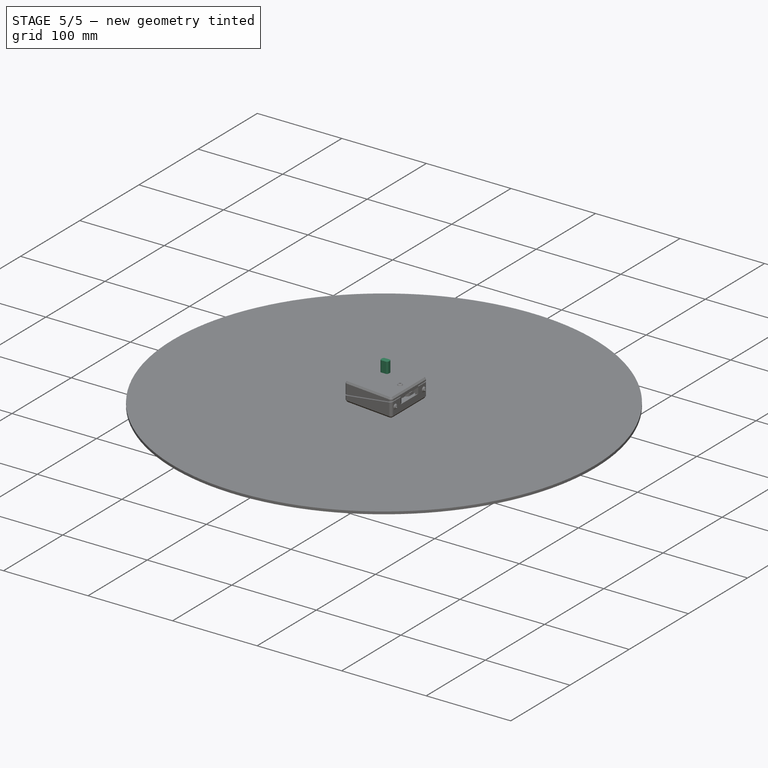
[diagram: stage 5 of 5 — iso view after this stage's code; geometry added in this stage tinted green]
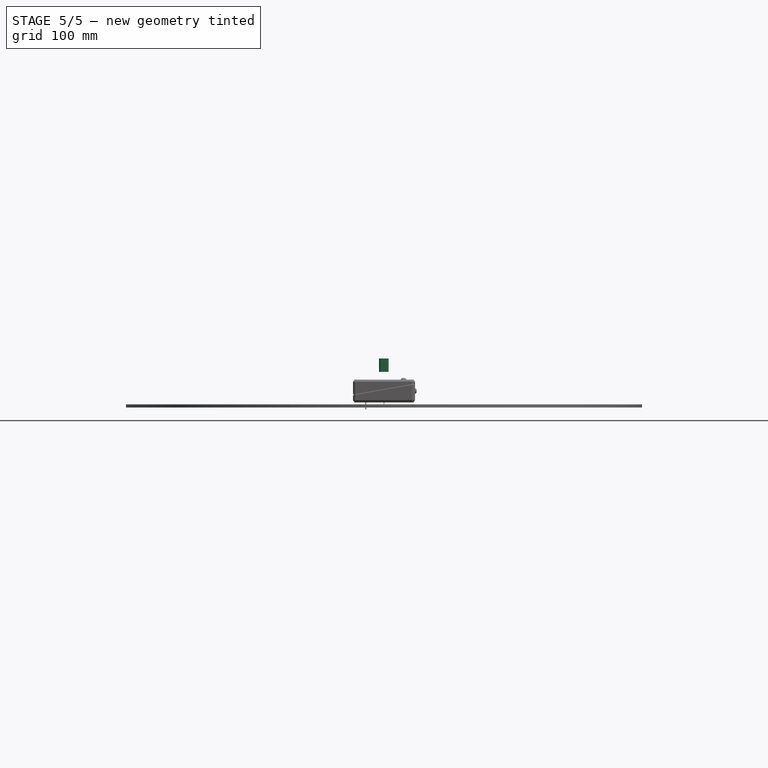
[diagram: stage 5 of 5 — front view after this stage's code; geometry added in this stage tinted green]
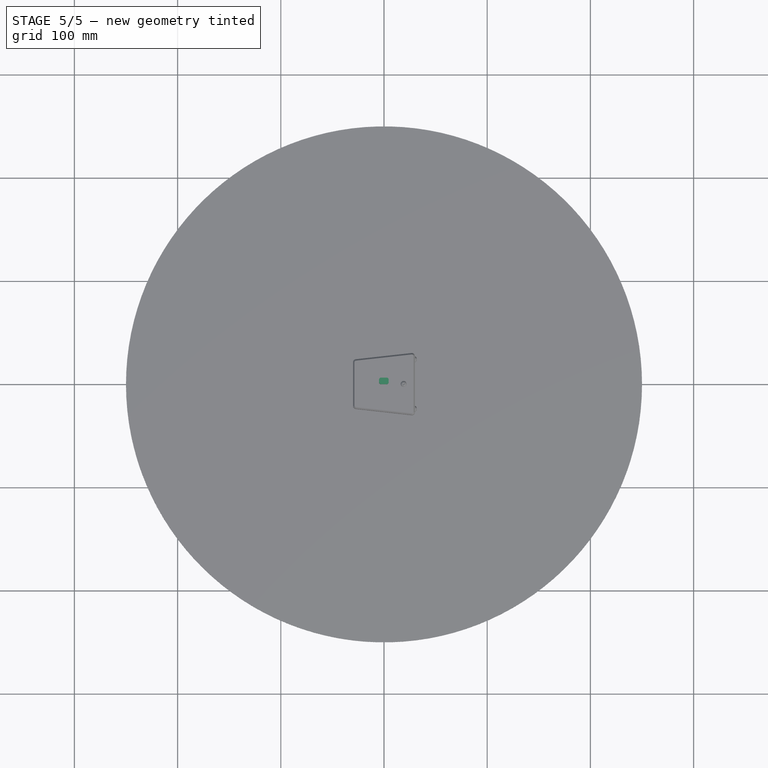
[diagram: stage 5 of 5 — top view after this stage's code; geometry added in this stage tinted green]
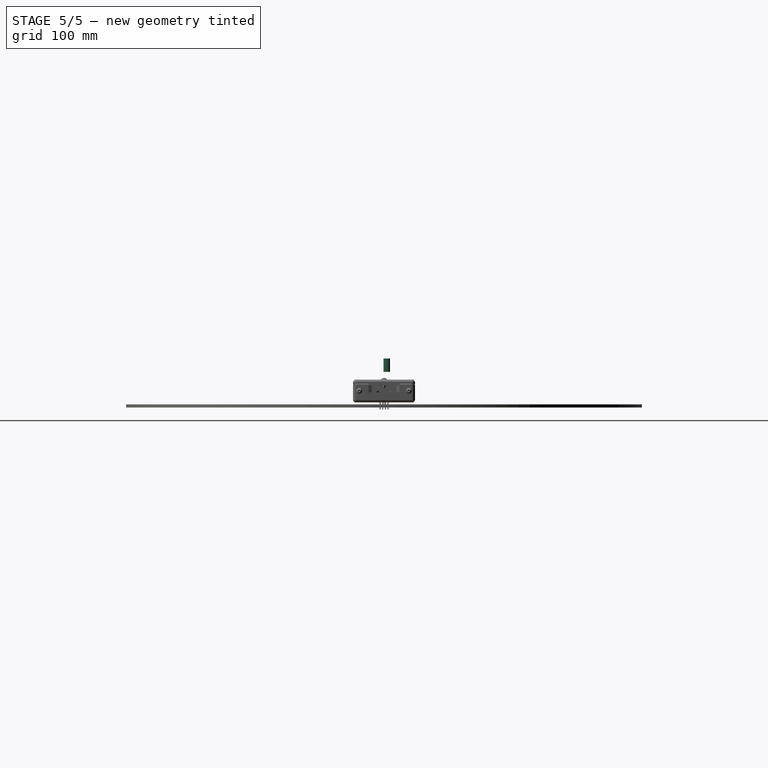
[diagram: stage 5 of 5 — right view after this stage's code; geometry added in this stage tinted green]
FEATURE [Part::Feature] Part__Feature012  label="0603 Capacitor008"
  Placement = pos=(3.51513,2.10169,0.00254) rot=(1,0,0;3.14159rad)
  shape: bbox 1.6 x 0.8382 x 0.8382 mm, 24 faces (baked)
FEATURE [Part::Feature] Part__Feature006  label="0603 Capacitor002"
  Placement = pos=(-10.9127,2.5742,0.00254) rot=(1,0,0;3.14159rad)
  shape: bbox 1.6 x 0.8382 x 0.8382 mm, 24 faces (baked)
FEATURE [Part::Feature] Part__Feature018  label="SOT23-3"
  Placement = pos=(-10.2514,-0.760044,0.105) rot=(1,0,0;3.14159rad)
  shape: bbox 2.844 x 3.009 x 1.193 mm, 52 faces (baked)
FEATURE [Part::Feature] Part__Feature003  label="0.91in OLED - Folded Flush - Without Glass"
  Placement = pos=(-1.5436,0.800028,1.28143) rot=(0,0,1;0rad)
  shape: bbox 34.09 x 11.52 x 0.6383 mm, 428 faces, 2 solids (baked)
FEATURE [Part::Feature] Part__Feature019  label="Diode (SOD-323)"
  Placement = pos=(-2.51121,-2.67602,-0.5715) rot=(1,0,0;3.14159rad)
  shape: bbox 2.845 x 1.499 x 1.144 mm, 45 faces (baked)
FEATURE [Part::Feature] Part__Feature015  label="0603 Resistor002"
  Placement = pos=(-3.2495,2.5465,0.00254) rot=(1,0,0;3.14159rad)
  shape: bbox 1.617 x 0.8669 x 0.4669 mm, 38 faces (baked)
FEATURE [Part::Feature] Part__Feature004  label="0603 Capacitor"
  Placement = pos=(-3.29935,-3.63302,0.00254) rot=(1,0,0;3.14159rad)
  shape: bbox 1.6 x 0.8382 x 0.8382 mm, 24 faces (baked)
FEATURE [Part::Feature] Part__Feature009  label="0603 Capacitor005"
  Placement = pos=(3.32725,-0.316834,0.00254) rot=(1,0,0;3.14159rad)
  shape: bbox 1.6 x 0.8382 x 0.8382 mm, 24 faces (baked)
FEATURE [Part::Feature] Part__Feature014  label="0603 Resistor001"
  Placement = pos=(-3.1983,-0.894545,0.00254) rot=(1,0,0;3.14159rad)
  shape: bbox 1.617 x 0.8669 x 0.4669 mm, 38 faces (baked)
FEATURE [Part::Feature] Part__Feature007  label="0603 Capacitor003"
  Placement = pos=(3.36031,-2.89609,0.00254) rot=(1,0,0;3.14159rad)
  shape: bbox 1.6 x 0.8382 x 0.8382 mm, 24 faces (baked)
FEATURE [Part::Feature] Part__Feature013  label="0603 Resistor"
  Placement = pos=(-3.22645,0.761404,0.00254) rot=(1,0,0;3.14159rad)
  shape: bbox 1.617 x 0.8669 x 0.4669 mm, 38 faces (baked)
FEATURE [Part::Feature] Part__Feature016  label="0603 Resistor003"
  Placement = pos=(3.43781,0.8856,0.00254) rot=(1,0,0;3.14159rad)
  shape: bbox 1.617 x 0.8669 x 0.4669 mm, 38 faces (baked)
FEATURE [Part::Feature] Part__Feature008  label="0603 Capacitor004"
  Placement = pos=(3.40009,-4.19989,0.00254) rot=(1,0,0;3.14159rad)
  shape: bbox 1.6 x 0.8382 x 0.8382 mm, 24 faces (baked)
FEATURE [Part::Feature] Part__Feature017  label="0603 Resistor004"
  Placement = pos=(-9.19255,-3.94572,0.00254) rot=(0,1,0;3.14159rad)
  shape: bbox 1.617 x 0.8669 x 0.4669 mm, 38 faces (baked)
FEATURE [Part::Feature] Part__Feature005  label="0603 Capacitor001"
  Placement = pos=(3.36334,-1.59229,0.00254) rot=(1,0,0;3.14159rad)
  shape: bbox 1.6 x 0.8382 x 0.8382 mm, 24 faces (baked)
FEATURE [Part::Feature] Part__Feature002  label="0.91in oled Module - Board"
  shape: bbox 37.96 x 12.13 x 1.238 mm, 661 faces (baked)
FEATURE [Part::Feature] Part__Feature010  label="0603 Capacitor006"
  Placement = pos=(3.46406,4.7926,0.00254) rot=(1,0,0;3.14159rad)
  shape: bbox 1.6 x 0.8382 x 0.8382 mm, 24 faces (baked)
FEATURE [Part::Feature] Part__Feature011  label="0603 Capacitor007"
  Placement = pos=(3.43442,3.49889,0.00254) rot=(1,0,0;3.14159rad)
  shape: bbox 1.6 x 0.8382 x 0.8382 mm, 24 faces (baked)
FEATURE [Sketcher::SketchObject] Sketch006  label="b Base shape"
  FullyConstrained = false
  MapMode = 5
  Support = -> [XY_Plane004]
  sketch-geometry (8):
    g0: LineSegment StartX=26.6687 StartY=29.9817 StartZ=0 EndX=-27.3313 EndY=23.9817 EndZ=0
    g1: LineSegment StartX=-27.3313 StartY=-23.9817 StartZ=0 EndX=26.6687 EndY=-29.9817 EndZ=0
    g2: LineSegment StartX=30 StartY=-27 StartZ=0 EndX=30 EndY=27 EndZ=0
    g3: ArcOfCircle CenterX=27 CenterY=27 CenterZ=0 NormalX=0 NormalY=0 NormalZ=1 AngleXU=0 Radius=3 StartAngle=3e-16 EndAngle=1.68145
    g4: ArcOfCircle CenterX=27 CenterY=-27 CenterZ=0 NormalX=0 NormalY=0 NormalZ=1 AngleXU=0 Radius=3 StartAngle=4.60173 EndAngle=6.28319
    g5: ArcOfCircle CenterX=-27 CenterY=-21 CenterZ=0 NormalX=0 NormalY=0 NormalZ=1 AngleXU=0 Radius=3 StartAngle=3.14159 EndAngle=4.60173
    g6: ArcOfCircle CenterX=-27 CenterY=21 CenterZ=0 NormalX=0 NormalY=0 NormalZ=1 AngleXU=0 Radius=3 StartAngle=1.68145 EndAngle=3.14159
    g7: LineSegment StartX=-30 StartY=21 StartZ=0 EndX=-30 EndY=-21 EndZ=0
  constraints (18):
    c: Vertical(g2)
    c: Tangent(g2,g3) = -1.5708
    c: Tangent(g0,g3) = -1.5708
    c: Tangent(g2,g4) = -1.5708
    c: Tangent(g1,g4) = -1.5708
    c: Symmetric(g4,g3,g-1)
    c: DistanceX(g2) = 30
    c: DistanceY(g2,g2) = 54
    c: Radius(g3) = 3
    c: Tangent(g1,g5) = -1.5708
    c: Tangent(g0,g6) = -1.5708
    c: Symmetric(g6,g5,g-1)
    c: DistanceY(g5,g6) = 42
    c: Equal(g3,g6)
    c: Vertical(g7)
    c: DistanceX(g7,g-1) = 30
    c: Tangent(g7,g6) = -1.5708
    c: Tangent(g5,g7) = -1.5708
FEATURE [Part::Feature] Part__Feature  label="MH-ET_LIVE_MiniKit"
  Placement = pos=(-9,3e-15,-5) rot=(0.57735,-0.57735,-0.57735;2.0944rad)
  shape: bbox 39.44 x 31.02 x 99.68 mm, 5494 faces, 23 solids (baked)
FEATURE [Sketcher::SketchObject] Sketch
  AttachmentOffset = pos=(0,0,21.5) rot=(0,0,1;0rad)
  FullyConstrained = false
  MapMode = 5
  Placement = pos=(0,0,21.5) rot=(0,0,1;0rad)
  Support = -> [XY_Plane]
  sketch-geometry (8):
    g0: LineSegment StartX=-2.8 StartY=5.8 StartZ=0 EndX=2.5 EndY=5.8 EndZ=0
    g1: LineSegment StartX=4.5 StartY=3.8 StartZ=0 EndX=4.5 EndY=1.5 EndZ=0
    g2: LineSegment StartX=2.5 StartY=-0.5 StartZ=0 EndX=-2.8 EndY=-0.5 EndZ=0
    g3: LineSegment StartX=-4.8 StartY=1.5 StartZ=0 EndX=-4.8 EndY=3.8 EndZ=0
    g4: ArcOfCircle CenterX=2.5 CenterY=1.5 CenterZ=0 NormalX=0 NormalY=0 NormalZ=1 AngleXU=0 Radius=2 StartAngle=4.71239 EndAngle=6.28319
    g5: ArcOfCircle CenterX=2.5 CenterY=3.8 CenterZ=0 NormalX=0 NormalY=0 NormalZ=1 AngleXU=0 Radius=2 StartAngle=0 EndAngle=1.5708
    g6: ArcOfCircle CenterX=-2.8 CenterY=3.8 CenterZ=0 NormalX=0 NormalY=0 NormalZ=1 AngleXU=0 Radius=2 StartAngle=1.5708 EndAngle=3.14159
    g7: ArcOfCircle CenterX=-2.8 CenterY=1.5 CenterZ=0 NormalX=0 NormalY=0 NormalZ=1 AngleXU=0 Radius=2 StartAngle=3.14159 EndAngle=4.71239
  constraints (20):
    c: Horizontal(g2)
    c: Vertical(g1)
    c: Vertical(g3)
    c: Tangent(g2,g4) = 1.5708
    c: Tangent(g1,g4) = 1.5708
    c: Tangent(g1,g5) = 1.5708
    c: Tangent(g0,g5) = 1.5708
    c: Tangent(g0,g6) = 1.5708
    c: Tangent(g3,g6) = 1.5708
    c: Tangent(g3,g7) = 1.5708
    c: Tangent(g2,g7) = 1.5708
    c: Equal(g7,g4)
    c: Equal(g4,g5)
    c: Equal(g5,g6)
    c: DistanceX(g3,g1) = 9.3
    c: DistanceY(g2,g0) = 6.3
    c: DistanceY(g-1,g2) = -0.5
    c: DistanceX(g1) = 4.5
    c: Radius(g5) = 2
    c: Horizontal(g0)
FEATURE [PartDesign::Pad] Pad
  AllowMultiFace = false
  Direction = (1,1,1)
  Length = 13
  Length2 = 100
  Profile = -> Sketch
  Type = 0
FEATURE [PartDesign::Body] Body  label="USB connector"
  Group = -> [Sketch,Pad]
  Origin = -> Origin
  Placement = pos=(-8,3e-15,-5) rot=(0.57735,-0.57735,-0.57735;2.0944rad)
  Tip = -> Pad
FEATURE [Sketcher::SketchObject] Sketch009
  FullyConstrained = false
  MapMode = 5
  Support = -> [XY_Plane005]
  sketch-geometry (1):
    g0: Circle CenterX=-17.65 CenterY=-3.81 CenterZ=0 NormalX=0 NormalY=0 NormalZ=1 AngleXU=0 Radius=0.4
  constraints (3):
    c: DistanceY(g0,g-1) = 3.81
    c: DistanceX(g0,g-1) = 17.65
    c: Radius(g0) = 0.4
FEATURE [Sketcher::SketchObject] Sketch010
  FullyConstrained = false
  MapMode = 5
  Support = -> [XY_Plane005]
  sketch-geometry (4):
    g0: ArcOfCircle CenterX=-17.65 CenterY=3.81 CenterZ=0 NormalX=0 NormalY=0 NormalZ=1 AngleXU=0 Radius=0.4 StartAngle=1e-16 EndAngle=3.14159
    g1: ArcOfCircle CenterX=-17.65 CenterY=-3.81 CenterZ=0 NormalX=0 NormalY=0 NormalZ=1 AngleXU=0 Radius=0.4 StartAngle=3.14159 EndAngle=6.28319
    g2: LineSegment StartX=-18.05 StartY=3.81 StartZ=0 EndX=-18.05 EndY=-3.81 EndZ=0
    g3: LineSegment StartX=-17.25 StartY=3.81 StartZ=0 EndX=-17.25 EndY=-3.81 EndZ=0
  constraints (9):
    c: Tangent(g0,g3) = 1.5708
    c: Tangent(g0,g2) = -1.5708
    c: Tangent(g2,g1) = -1.5708
    c: Tangent(g3,g1) = 1.5708
    c: Vertical(g2)
    c: Symmetric(g1,g0,g-1)
    c: DistanceY(g1,g0) = 7.62
    c: DistanceX(g1,g1) = 0.8
    c: DistanceX(g1,g-1) = 17.65
FEATURE [PartDesign::Pad] Pad005
  AllowMultiFace = false
  Direction = (1,1,1)
  Length = 0.1
  Length2 = 100
  Profile = -> Sketch010
  Type = 0
FEATURE [PartDesign::Pad] Pad006
  AllowMultiFace = false
  BaseFeature = -> Pad005
  Direction = (1,1,1)
  Length = 15
  Length2 = 100
  Profile = -> Sketch009
  Reversed = true
  Type = 0
FEATURE [PartDesign::LinearPattern] LinearPattern003
  BaseFeature = -> Pad006
  Direction = -> Y_Axis005
  Length = 7.62
  Occurrences = 4
  Originals = -> [Pad006]
FEATURE [PartDesign::Body] Body005  label="ScreenWires"
  Group = -> [Sketch009,Sketch010,Pad005,Pad006,LinearPattern003]
  Origin = -> Origin005
  Tip = -> LinearPattern003
FEATURE [App::Part] __91in_OLED_Module___Without_Glass  label="0.91in OLED Module - Without Glass"
  Group = -> [Part__Feature002,Part__Feature003,Part__Feature004,Part__Feature005,Part__Feature006,Part__Feature007,Part__Feature008,Part__Feature009,Part__Feature010,Part__Feature011,Part__Feature012,Part__Feature013,Part__Feature014,Part__Feature015,Part__Feature016,Part__Feature017,Part__Feature018,Part__Feature019,Body005]
  Origin = -> Origin003
  Placement = pos=(25,0,5.6) rot=(0.57735,-0.57735,0.57735;4.18879rad)
FEATURE [Sketcher::SketchObject] Sketch011
  FullyConstrained = false
  MapMode = 5
  Placement = pos=(0,0,0) rot=(1,0,0;1.5708rad)
  sketch-geometry (3):
    g0: LineSegment StartX=-1.15 StartY=0 StartZ=0 EndX=0 EndY=-1.15 EndZ=0
    g1: LineSegment StartX=0 StartY=-1.15 StartZ=0 EndX=1.15 EndY=0 EndZ=0
    g2: LineSegment StartX=1.15 StartY=0 StartZ=0 EndX=-1.15 EndY=0 EndZ=0
  constraints (9):
    c: PointOnObject(g0,g-1)
    c: Coincident(g0,g1)
    c: PointOnObject(g1,g-1)
    c: Coincident(g1,g2)
    c: Coincident(g2,g0)
    c: PointOnObject(g0,g-2)
    c: Equal(g1,g0)
    c: Perpendicular(g0,g1)
    c: DistanceX(g2,g2) = 2.3
FEATURE [Sketcher::SketchObject] Sketch012
  FullyConstrained = false
  MapMode = 5
  Placement = pos=(0,0,0) rot=(1,0,0;1.5708rad)
  sketch-geometry (5):
    g0: LineSegment StartX=0 StartY=0 StartZ=0 EndX=0 EndY=-12 EndZ=0
    g1: LineSegment StartX=0 StartY=-12 StartZ=0 EndX=0.9 EndY=-1.05 EndZ=0
    g2: LineSegment StartX=0.9 StartY=-1.05 StartZ=0 EndX=1.85 EndY=-0.1 EndZ=0
    g3: LineSegment StartX=1.85 StartY=0 StartZ=0 EndX=0 EndY=0 EndZ=0
    g4: LineSegment StartX=1.85 StartY=-0.1 StartZ=0 EndX=1.85 EndY=0 EndZ=0
  constraints (14):
    c: Coincident(g-1,g0)
    c: Vertical(g0)
    c: Coincident(g0,g1)
    c: Coincident(g1,g2)
    c: Coincident(g3,g0)
    c: DistanceY(g0,g0) = 12
    c: Angle(g3,g2) = 0.785398
    c: DistanceX(g0,g1) = 0.9
    c: Horizontal(g3)
    c: Coincident(g4,g2)
    c: Vertical(g4)
    c: Coincident(g3,g4)
    c: DistanceX(g3) = 1.85
    c: DistanceY(g4,g4) = 0.1
FEATURE [PartDesign::Revolution] Revolution002
  AllowMultiFace = false
  Angle = 360
  Axis = (0,2e-16,1)
  Base = (0,0,0)
  Placement = pos=(0,0,0) rot=(1,0,0;1.5708rad)
  Profile = -> Sketch012
  ReferenceAxis = -> Sketch012 [V_Axis]
  Reversed = true
FEATURE [PartDesign::Pocket] Pocket002
  AllowMultiFace = false
  BaseFeature = -> Revolution002
  Direction = (1,1,1)
  Length = 0.4
  Length2 = 100
  Midplane = true
  Placement = pos=(0,0,0) rot=(1,0,0;1.5708rad)
  Profile = -> Sketch011
  Type = 0
FEATURE [PartDesign::PolarPattern] PolarPattern002
  Angle = 90
  Axis = -> Sketch011 [V_Axis]
  BaseFeature = -> Pocket002
  Occurrences = 2
  Originals = -> [Pocket002]
  Placement = pos=(0,0,0) rot=(1,0,0;1.5708rad)
FEATURE [PartDesign::Body] Body006  label="SelftappingScrew 2.3x12 - Bottom1"
  Group = -> [Sketch012,Revolution002,Sketch011,Pocket002,PolarPattern002]
  Placement = pos=(12,21,-6.7) rot=(0,1,0;3.14159rad)
  Tip = -> PolarPattern002
FEATURE [Sketcher::SketchObject] Sketch013
  FullyConstrained = false
  MapMode = 5
  Placement = pos=(0,0,0) rot=(1,0,0;1.5708rad)
  sketch-geometry (5):
    g0: LineSegment StartX=0 StartY=0 StartZ=0 EndX=0 EndY=-12 EndZ=0
    g1: LineSegment StartX=0 StartY=-12 StartZ=0 EndX=0.9 EndY=-1.05 EndZ=0
    g2: LineSegment StartX=0.9 StartY=-1.05 StartZ=0 EndX=1.85 EndY=-0.1 EndZ=0
    g3: LineSegment StartX=1.85 StartY=0 StartZ=0 EndX=0 EndY=0 EndZ=0
    g4: LineSegment StartX=1.85 StartY=-0.1 StartZ=0 EndX=1.85 EndY=0 EndZ=0
  constraints (14):
    c: Coincident(g-1,g0)
    c: Vertical(g0)
    c: Coincident(g0,g1)
    c: Coincident(g1,g2)
    c: Coincident(g3,g0)
    c: DistanceY(g0,g0) = 12
    c: Angle(g3,g2) = 0.785398
    c: DistanceX(g0,g1) = 0.9
    c: Horizontal(g3)
    c: Coincident(g4,g2)
    c: Vertical(g4)
    c: Coincident(g3,g4)
    c: DistanceX(g3) = 1.85
    c: DistanceY(g4,g4) = 0.1
FEATURE [Sketcher::SketchObject] Sketch014
  FullyConstrained = false
  MapMode = 5
  Placement = pos=(0,0,0) rot=(1,0,0;1.5708rad)
  sketch-geometry (3):
    g0: LineSegment StartX=-1.15 StartY=0 StartZ=0 EndX=0 EndY=-1.15 EndZ=0
    g1: LineSegment StartX=0 StartY=-1.15 StartZ=0 EndX=1.15 EndY=0 EndZ=0
    g2: LineSegment StartX=1.15 StartY=0 StartZ=0 EndX=-1.15 EndY=0 EndZ=0
  constraints (9):
    c: PointOnObject(g0,g-1)
    c: Coincident(g0,g1)
    c: PointOnObject(g1,g-1)
    c: Coincident(g1,g2)
    c: Coincident(g2,g0)
    c: PointOnObject(g0,g-2)
    c: Equal(g1,g0)
    c: Perpendicular(g0,g1)
    c: DistanceX(g2,g2) = 2.3
FEATURE [PartDesign::Revolution] Revolution003
  AllowMultiFace = false
  Angle = 360
  Axis = (0,2e-16,1)
  Base = (0,0,0)
  Placement = pos=(0,0,0) rot=(1,0,0;1.5708rad)
  Profile = -> Sketch013
  ReferenceAxis = -> Sketch013 [V_Axis]
  Reversed = true
FEATURE [PartDesign::Pocket] Pocket003
  AllowMultiFace = false
  BaseFeature = -> Revolution003
  Direction = (1,1,1)
  Length = 0.4
  Length2 = 100
  Midplane = true
  Placement = pos=(0,0,0) rot=(1,0,0;1.5708rad)
  Profile = -> Sketch014
  Type = 0
FEATURE [PartDesign::PolarPattern] PolarPattern003
  Angle = 90
  Axis = -> Sketch014 [V_Axis]
  BaseFeature = -> Pocket003
  Occurrences = 2
  Originals = -> [Pocket003]
  Placement = pos=(0,0,0) rot=(1,0,0;1.5708rad)
FEATURE [PartDesign::Body] Body007  label="SelftappingScrew 2.3x12 - Bottom2"
  Group = -> [Sketch013,Revolution003,Sketch014,Pocket003,PolarPattern003]
  Placement = pos=(-25,19,-6.7) rot=(0,1,0;3.14159rad)
  Tip = -> PolarPattern003
FEATURE [Sketcher::SketchObject] Sketch015
  FullyConstrained = false
  MapMode = 5
  Placement = pos=(0,0,0) rot=(1,0,0;1.5708rad)
  sketch-geometry (3):
    g0: LineSegment StartX=-1.15 StartY=0 StartZ=0 EndX=0 EndY=-1.15 EndZ=0
    g1: LineSegment StartX=0 StartY=-1.15 StartZ=0 EndX=1.15 EndY=0 EndZ=0
    g2: LineSegment StartX=1.15 StartY=0 StartZ=0 EndX=-1.15 EndY=0 EndZ=0
  constraints (9):
    c: PointOnObject(g0,g-1)
    c: Coincident(g0,g1)
    c: PointOnObject(g1,g-1)
    c: Coincident(g1,g2)
    c: Coincident(g2,g0)
    c: PointOnObject(g0,g-2)
    c: Equal(g1,g0)
    c: Perpendicular(g0,g1)
    c: DistanceX(g2,g2) = 2.3
FEATURE [Sketcher::SketchObject] Sketch016
  FullyConstrained = false
  MapMode = 5
  Placement = pos=(0,0,0) rot=(1,0,0;1.5708rad)
  sketch-geometry (5):
    g0: LineSegment StartX=0 StartY=0 StartZ=0 EndX=0 EndY=-12 EndZ=0
    g1: LineSegment StartX=0 StartY=-12 StartZ=0 EndX=0.9 EndY=-1.05 EndZ=0
    g2: LineSegment StartX=0.9 StartY=-1.05 StartZ=0 EndX=1.85 EndY=-0.1 EndZ=0
    g3: LineSegment StartX=1.85 StartY=0 StartZ=0 EndX=0 EndY=0 EndZ=0
    g4: LineSegment StartX=1.85 StartY=-0.1 StartZ=0 EndX=1.85 EndY=0 EndZ=0
  constraints (14):
    c: Coincident(g-1,g0)
    c: Vertical(g0)
    c: Coincident(g0,g1)
    c: Coincident(g1,g2)
    c: Coincident(g3,g0)
    c: DistanceY(g0,g0) = 12
    c: Angle(g3,g2) = 0.785398
    c: DistanceX(g0,g1) = 0.9
    c: Horizontal(g3)
    c: Coincident(g4,g2)
    c: Vertical(g4)
    c: Coincident(g3,g4)
    c: DistanceX(g3) = 1.85
    c: DistanceY(g4,g4) = 0.1
FEATURE [PartDesign::Revolution] Revolution004
  AllowMultiFace = false
  Angle = 360
  Axis = (0,2e-16,1)
  Base = (0,0,0)
  Placement = pos=(0,0,0) rot=(1,0,0;1.5708rad)
  Profile = -> Sketch016
  ReferenceAxis = -> Sketch016 [V_Axis]
  Reversed = true
FEATURE [PartDesign::Pocket] Pocket004
  AllowMultiFace = false
  BaseFeature = -> Revolution004
  Direction = (1,1,1)
  Length = 0.4
  Length2 = 100
  Midplane = true
  Placement = pos=(0,0,0) rot=(1,0,0;1.5708rad)
  Profile = -> Sketch015
  Type = 0
FEATURE [PartDesign::PolarPattern] PolarPattern004
  Angle = 90
  Axis = -> Sketch015 [V_Axis]
  BaseFeature = -> Pocket004
  Occurrences = 2
  Originals = -> [Pocket004]
  Placement = pos=(0,0,0) rot=(1,0,0;1.5708rad)
FEATURE [PartDesign::Body] Body008  label="SelftappingScrew 2.3x12 - Bottom3"
  Group = -> [Sketch016,Revolution004,Sketch015,Pocket004,PolarPattern004]
  Placement = pos=(-25,-19,-6.7) rot=(0,1,0;3.14159rad)
  Tip = -> PolarPattern004
FEATURE [Sketcher::SketchObject] Sketch017
  FullyConstrained = false
  MapMode = 5
  Placement = pos=(0,0,0) rot=(1,0,0;1.5708rad)
  sketch-geometry (5):
    g0: LineSegment StartX=0 StartY=0 StartZ=0 EndX=0 EndY=-12 EndZ=0
    g1: LineSegment StartX=0 StartY=-12 StartZ=0 EndX=0.9 EndY=-1.05 EndZ=0
    g2: LineSegment StartX=0.9 StartY=-1.05 StartZ=0 EndX=1.85 EndY=-0.1 EndZ=0
    g3: LineSegment StartX=1.85 StartY=0 StartZ=0 EndX=0 EndY=0 EndZ=0
    g4: LineSegment StartX=1.85 StartY=-0.1 StartZ=0 EndX=1.85 EndY=0 EndZ=0
  constraints (14):
    c: Coincident(g-1,g0)
    c: Vertical(g0)
    c: Coincident(g0,g1)
    c: Coincident(g1,g2)
    c: Coincident(g3,g0)
    c: DistanceY(g0,g0) = 12
    c: Angle(g3,g2) = 0.785398
    c: DistanceX(g0,g1) = 0.9
    c: Horizontal(g3)
    c: Coincident(g4,g2)
    c: Vertical(g4)
    c: Coincident(g3,g4)
    c: DistanceX(g3) = 1.85
    c: DistanceY(g4,g4) = 0.1
FEATURE [Sketcher::SketchObject] Sketch018
  FullyConstrained = false
  MapMode = 5
  Placement = pos=(0,0,0) rot=(1,0,0;1.5708rad)
  sketch-geometry (3):
    g0: LineSegment StartX=-1.15 StartY=0 StartZ=0 EndX=0 EndY=-1.15 EndZ=0
    g1: LineSegment StartX=0 StartY=-1.15 StartZ=0 EndX=1.15 EndY=0 EndZ=0
    g2: LineSegment StartX=1.15 StartY=0 StartZ=0 EndX=-1.15 EndY=0 EndZ=0
  constraints (9):
    c: PointOnObject(g0,g-1)
    c: Coincident(g0,g1)
    c: PointOnObject(g1,g-1)
    c: Coincident(g1,g2)
    c: Coincident(g2,g0)
    c: PointOnObject(g0,g-2)
    c: Equal(g1,g0)
    c: Perpendicular(g0,g1)
    c: DistanceX(g2,g2) = 2.3
FEATURE [PartDesign::Revolution] Revolution005
  AllowMultiFace = false
  Angle = 360
  Axis = (0,2e-16,1)
  Base = (0,0,0)
  Placement = pos=(0,0,0) rot=(1,0,0;1.5708rad)
  Profile = -> Sketch017
  ReferenceAxis = -> Sketch017 [V_Axis]
  Reversed = true
FEATURE [PartDesign::Pocket] Pocket005
  AllowMultiFace = false
  BaseFeature = -> Revolution005
  Direction = (1,1,1)
  Length = 0.4
  Length2 = 100
  Midplane = true
  Placement = pos=(0,0,0) rot=(1,0,0;1.5708rad)
  Profile = -> Sketch018
  Type = 0
FEATURE [PartDesign::PolarPattern] PolarPattern005
  Angle = 90
  Axis = -> Sketch018 [V_Axis]
  BaseFeature = -> Pocket005
  Occurrences = 2
  Originals = -> [Pocket005]
  Placement = pos=(0,0,0) rot=(1,0,0;1.5708rad)
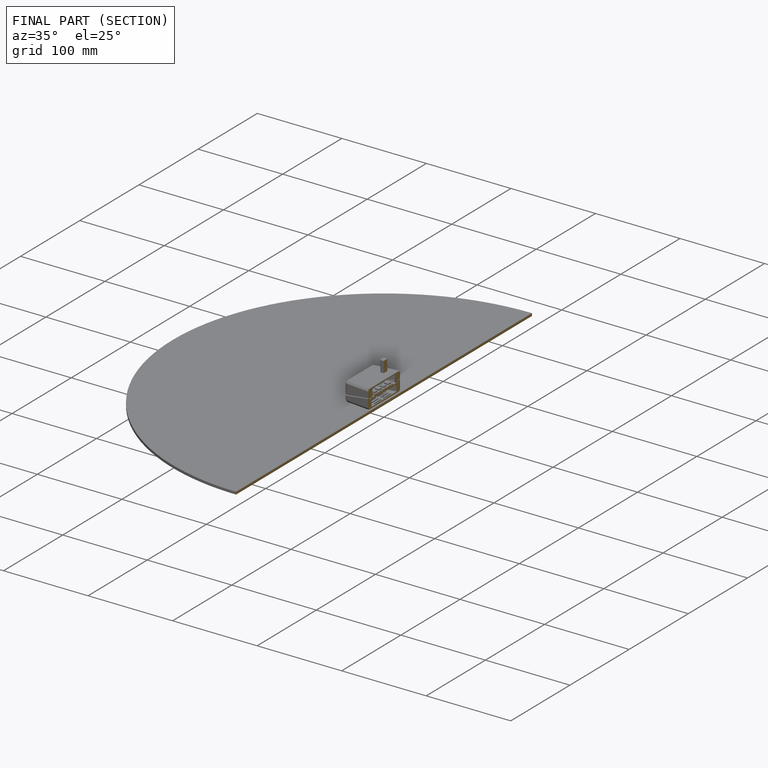
[diagram: finished part — half-section view (interior)]
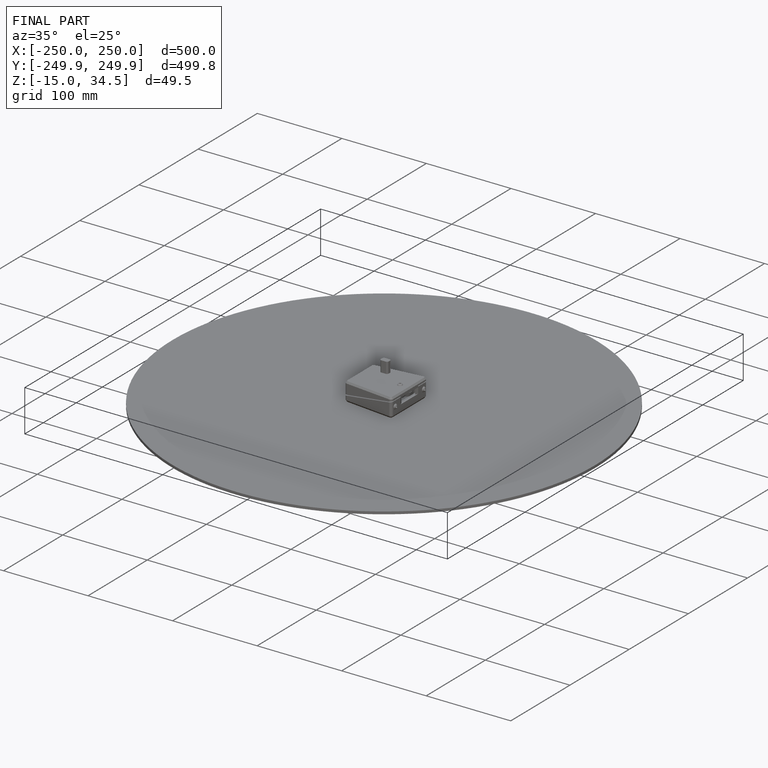
[diagram: finished part — iso view with bounding-box wireframe]
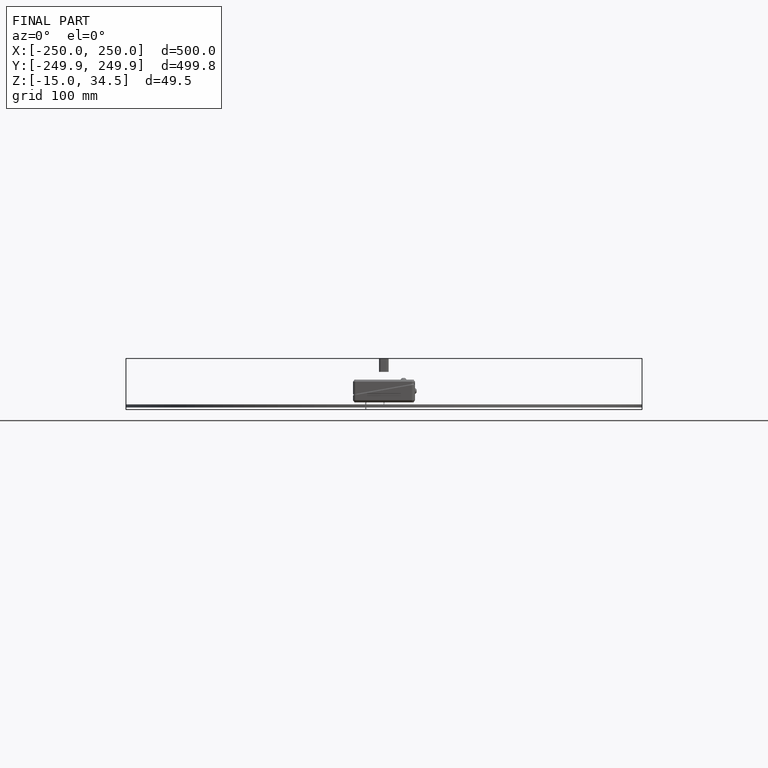
[diagram: finished part — front view with bounding-box wireframe]
